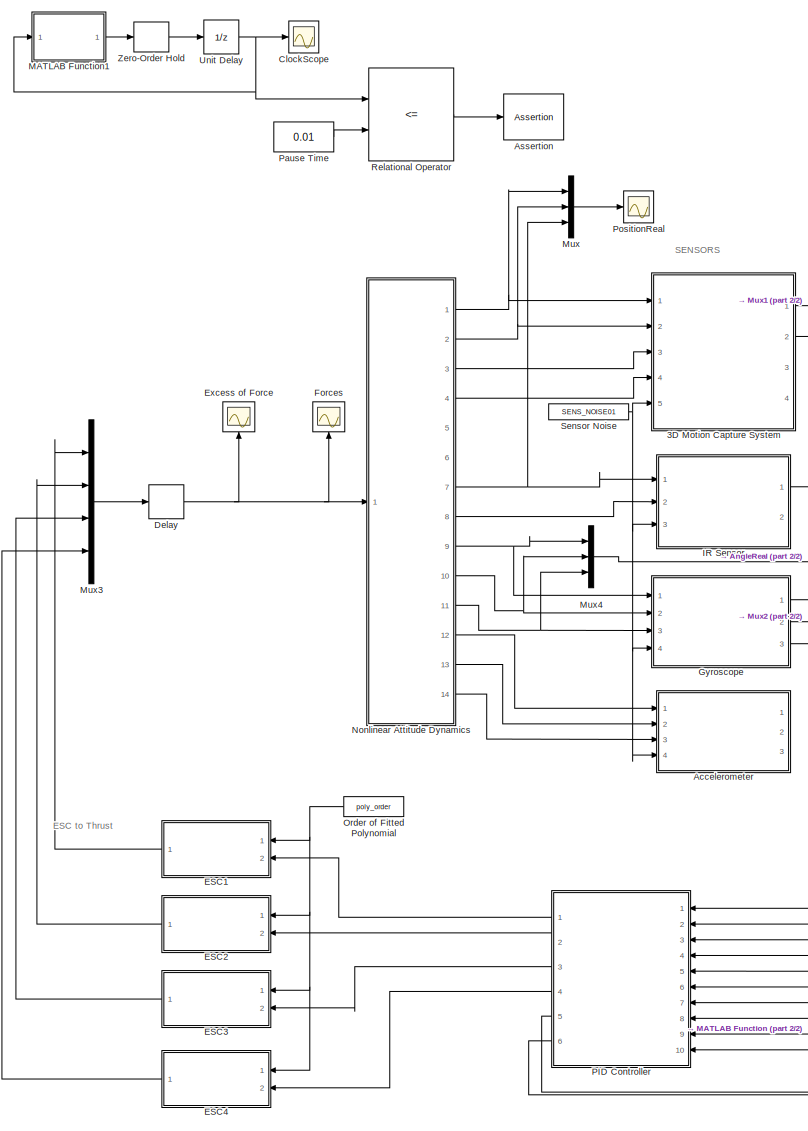
[diagram: root canvas - part 1/2, left side, full height]
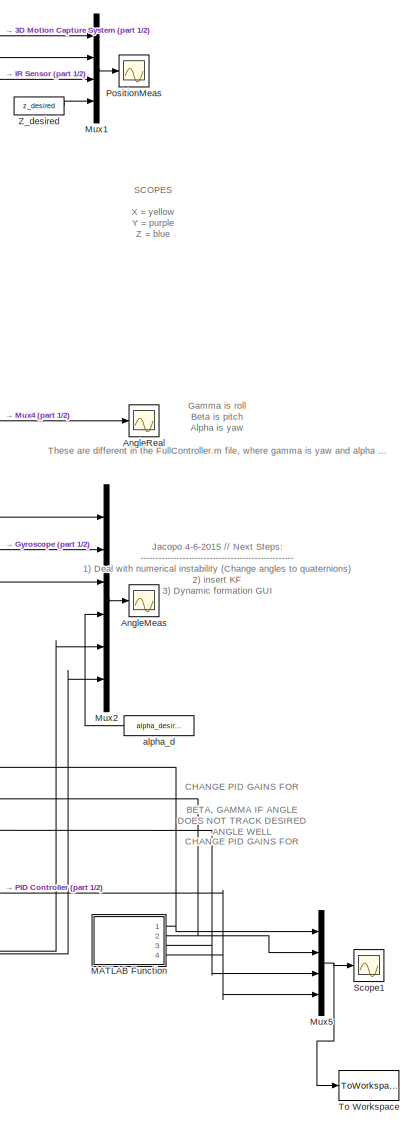
[diagram: root canvas - part 2/2, right side, full height]
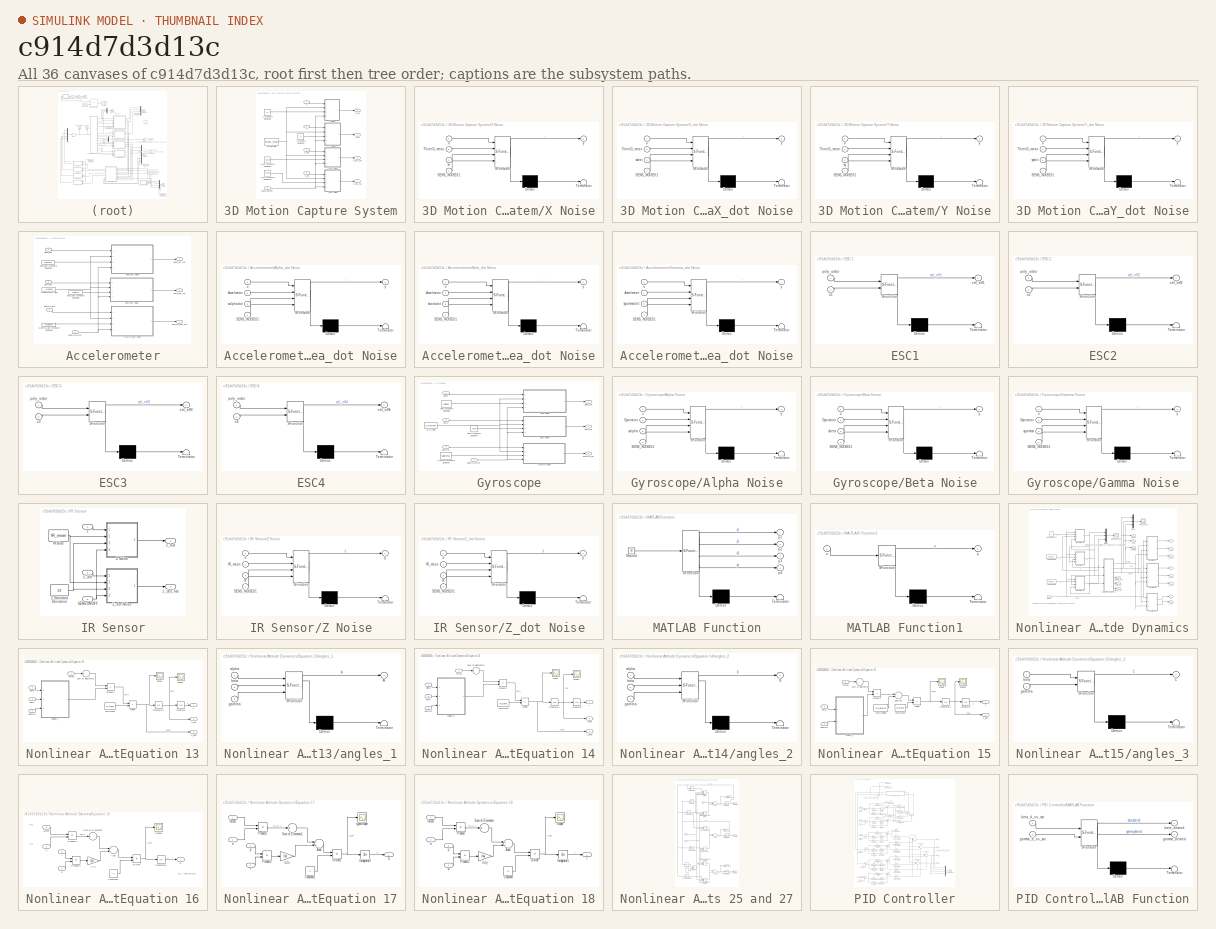
[diagram: thumbnail index - all 36 canvases of the model, root first then tree order]
MODEL slx_c914d7d3d13c
KIND model
BLOCK [SubSystem] 3D Motion Capture System
  Ports = [5, 4]
  RequestExecContextInheritance = off
BLOCK [Inport] 3D Motion Capture System/SENS-ON//OFF
  IconDisplay = Port number
  Port = 5
BLOCK [Constant] 3D Motion Capture System/ThreeD Bias
  Value = ThreeD_mean
BLOCK [SubSystem] 3D Motion Capture System/X Noise
  ErrorFcn = Stateflow.Translate.translate
  PermitHierarchicalResolution = ExplicitOnly
  Ports = [4, 1]
  RequestExecContextInheritance = off
  SFBlockType = MATLAB Function
  TreatAsAtomicUnit = on
BLOCK [Demux] 3D Motion Capture System/X Noise/ Demux 
  Outputs = 1
  Ports = [1, 1]
BLOCK [S-Function] 3D Motion Capture System/X Noise/ SFunction 
  EnableBusSupport = on
  FunctionName = sf_sfun
  PortCounts = [4 2]
  Ports = [4, 2]
  Tag = Stateflow S-Function DFA_PID_Controller_ESC 2
BLOCK [Terminator] 3D Motion Capture System/X Noise/ Terminator 
BLOCK [Inport] 3D Motion Capture System/X Noise/SENS_NOISE01
  IconDisplay = Port number
  Port = 4
BLOCK [Inport] 3D Motion Capture System/X Noise/ThreeD_mean
  IconDisplay = Port number
  Port = 2
BLOCK [Inport] 3D Motion Capture System/X Noise/sx
  IconDisplay = Port number
  Port = 3
BLOCK [Inport] 3D Motion Capture System/X Noise/u
  IconDisplay = Port number
BLOCK [Outport] 3D Motion Capture System/X Noise/y
  IconDisplay = Port number
BLOCK [Constant] 3D Motion Capture System/X Standard Deviation
  Value = sx
BLOCK [SubSystem] 3D Motion Capture System/X_dot Noise
  ErrorFcn = Stateflow.Translate.translate
  PermitHierarchicalResolution = ExplicitOnly
  Ports = [4, 1]
  RequestExecContextInheritance = off
  SFBlockType = MATLAB Function
  TreatAsAtomicUnit = on
BLOCK [Demux] 3D Motion Capture System/X_dot Noise/ Demux 
  Outputs = 1
  Ports = [1, 1]
BLOCK [S-Function] 3D Motion Capture System/X_dot Noise/ SFunction 
  EnableBusSupport = on
  FunctionName = sf_sfun
  PortCounts = [4 2]
  Ports = [4, 2]
  Tag = Stateflow S-Function DFA_PID_Controller_ESC 8
BLOCK [Terminator] 3D Motion Capture System/X_dot Noise/ Terminator 
BLOCK [Inport] 3D Motion Capture System/X_dot Noise/SENS_NOISE01
  IconDisplay = Port number
  Port = 4
BLOCK [Inport] 3D Motion Capture System/X_dot Noise/ThreeD_mean
  IconDisplay = Port number
  Port = 2
BLOCK [Inport] 3D Motion Capture System/X_dot Noise/sxdot
  IconDisplay = Port number
  Port = 3
BLOCK [Inport] 3D Motion Capture System/X_dot Noise/u
  IconDisplay = Port number
BLOCK [Outport] 3D Motion Capture System/X_dot Noise/y
  IconDisplay = Port number
BLOCK [Constant] 3D Motion Capture System/X_dot Standard Deviation
  Value = sxdot
BLOCK [SubSystem] 3D Motion Capture System/Y Noise
  ErrorFcn = Stateflow.Translate.translate
  PermitHierarchicalResolution = ExplicitOnly
  Ports = [4, 1]
  RequestExecContextInheritance = off
  SFBlockType = MATLAB Function
  TreatAsAtomicUnit = on
BLOCK [Demux] 3D Motion Capture System/Y Noise/ Demux 
  Outputs = 1
  Ports = [1, 1]
BLOCK [S-Function] 3D Motion Capture System/Y Noise/ SFunction 
  EnableBusSupport = on
  FunctionName = sf_sfun
  PortCounts = [4 2]
  Ports = [4, 2]
  Tag = Stateflow S-Function DFA_PID_Controller_ESC 9
BLOCK [Terminator] 3D Motion Capture System/Y Noise/ Terminator 
BLOCK [Inport] 3D Motion Capture System/Y Noise/SENS_NOISE01
  IconDisplay = Port number
  Port = 4
BLOCK [Inport] 3D Motion Capture System/Y Noise/ThreeD_mean
  IconDisplay = Port number
  Port = 2
BLOCK [Inport] 3D Motion Capture System/Y Noise/sy
  IconDisplay = Port number
  Port = 3
BLOCK [Inport] 3D Motion Capture System/Y Noise/u
  IconDisplay = Port number
BLOCK [Outport] 3D Motion Capture System/Y Noise/y
  IconDisplay = Port number
BLOCK [Constant] 3D Motion Capture System/Y Standard Deviation
  Value = sy
BLOCK [SubSystem] 3D Motion Capture System/Y_dot Noise
  ErrorFcn = Stateflow.Translate.translate
  PermitHierarchicalResolution = ExplicitOnly
  Ports = [4, 1]
  RequestExecContextInheritance = off
  SFBlockType = MATLAB Function
  TreatAsAtomicUnit = on
BLOCK [Demux] 3D Motion Capture System/Y_dot Noise/ Demux 
  Outputs = 1
  Ports = [1, 1]
BLOCK [S-Function] 3D Motion Capture System/Y_dot Noise/ SFunction 
  EnableBusSupport = on
  FunctionName = sf_sfun
  PortCounts = [4 2]
  Ports = [4, 2]
  Tag = Stateflow S-Function DFA_PID_Controller_ESC 7
BLOCK [Terminator] 3D Motion Capture System/Y_dot Noise/ Terminator 
BLOCK [Inport] 3D Motion Capture System/Y_dot Noise/SENS_NOISE01
  IconDisplay = Port number
  Port = 4
BLOCK [Inport] 3D Motion Capture System/Y_dot Noise/ThreeD_mean
  IconDisplay = Port number
  Port = 2
BLOCK [Inport] 3D Motion Capture System/Y_dot Noise/sydot
  IconDisplay = Port number
  Port = 3
BLOCK [Inport] 3D Motion Capture System/Y_dot Noise/u
  IconDisplay = Port number
BLOCK [Outport] 3D Motion Capture System/Y_dot Noise/y
  IconDisplay = Port number
BLOCK [Constant] 3D Motion Capture System/Y_dot Standard Deviation1
  Value = sydot
BLOCK [Inport] 3D Motion Capture System/x
  IconDisplay = Port number
BLOCK [Inport] 3D Motion Capture System/x_dot
  IconDisplay = Port number
  Port = 3
BLOCK [Outport] 3D Motion Capture System/x_dot_hat
  IconDisplay = Port number
  Port = 3
BLOCK [Outport] 3D Motion Capture System/x_hat
  IconDisplay = Port number
BLOCK [Inport] 3D Motion Capture System/y
  IconDisplay = Port number
  Port = 2
BLOCK [Inport] 3D Motion Capture System/y_dot
  IconDisplay = Port number
  Port = 4
BLOCK [Outport] 3D Motion Capture System/y_dot_hat
  IconDisplay = Port number
  Port = 4
BLOCK [Outport] 3D Motion Capture System/y_hat
  IconDisplay = Port number
  Port = 2
BLOCK [SubSystem] Accelerometer
  Ports = [4, 3]
  RequestExecContextInheritance = off
BLOCK [Constant] Accelerometer/Accelerometer Bias
  Value = Accelmean
BLOCK [SubSystem] Accelerometer/Alpha_dot Noise
  ErrorFcn = Stateflow.Translate.translate
  PermitHierarchicalResolution = ExplicitOnly
  Ports = [4, 1]
  RequestExecContextInheritance = off
  SFBlockType = MATLAB Function
  TreatAsAtomicUnit = on
BLOCK [Demux] Accelerometer/Alpha_dot Noise/ Demux 
  Outputs = 1
  Ports = [1, 1]
BLOCK [S-Function] Accelerometer/Alpha_dot Noise/ SFunction 
  EnableBusSupport = on
  FunctionName = sf_sfun
  PortCounts = [4 2]
  Ports = [4, 2]
  Tag = Stateflow S-Function DFA_PID_Controller_ESC 13
BLOCK [Terminator] Accelerometer/Alpha_dot Noise/ Terminator 
BLOCK [Inport] Accelerometer/Alpha_dot Noise/Accelmean
  IconDisplay = Port number
  Port = 2
BLOCK [Inport] Accelerometer/Alpha_dot Noise/SENS_NOISE01
  IconDisplay = Port number
  Port = 4
BLOCK [Inport] Accelerometer/Alpha_dot Noise/salphadot
  IconDisplay = Port number
  Port = 3
BLOCK [Inport] Accelerometer/Alpha_dot Noise/u
  IconDisplay = Port number
BLOCK [Outport] Accelerometer/Alpha_dot Noise/y
  IconDisplay = Port number
BLOCK [Constant] Accelerometer/Alpha_dot Standard Deviation
  Value = salphadot
BLOCK [SubSystem] Accelerometer/Beta_dot Noise
  ErrorFcn = Stateflow.Translate.translate
  PermitHierarchicalResolution = ExplicitOnly
  Ports = [4, 1]
  RequestExecContextInheritance = off
  SFBlockType = MATLAB Function
  TreatAsAtomicUnit = on
BLOCK [Demux] Accelerometer/Beta_dot Noise/ Demux 
  Outputs = 1
  Ports = [1, 1]
BLOCK [S-Function] Accelerometer/Beta_dot Noise/ SFunction 
  EnableBusSupport = on
  FunctionName = sf_sfun
  PortCounts = [4 2]
  Ports = [4, 2]
  Tag = Stateflow S-Function DFA_PID_Controller_ESC 11
BLOCK [Terminator] Accelerometer/Beta_dot Noise/ Terminator 
BLOCK [Inport] Accelerometer/Beta_dot Noise/Accelmean
  IconDisplay = Port number
  Port = 2
BLOCK [Inport] Accelerometer/Beta_dot Noise/SENS_NOISE01
  IconDisplay = Port number
  Port = 4
BLOCK [Inport] Accelerometer/Beta_dot Noise/sbetadot
  IconDisplay = Port number
  Port = 3
BLOCK [Inport] Accelerometer/Beta_dot Noise/u
  IconDisplay = Port number
BLOCK [Outport] Accelerometer/Beta_dot Noise/y
  IconDisplay = Port number
BLOCK [Constant] Accelerometer/Beta_dot Standard Deviation
  Value = sbetadot
BLOCK [SubSystem] Accelerometer/Gamma_dot Noise
  ErrorFcn = Stateflow.Translate.translate
  PermitHierarchicalResolution = ExplicitOnly
  Ports = [4, 1]
  RequestExecContextInheritance = off
  SFBlockType = MATLAB Function
  TreatAsAtomicUnit = on
BLOCK [Demux] Accelerometer/Gamma_dot Noise/ Demux 
  Outputs = 1
  Ports = [1, 1]
BLOCK [S-Function] Accelerometer/Gamma_dot Noise/ SFunction 
  EnableBusSupport = on
  FunctionName = sf_sfun
  PortCounts = [4 2]
  Ports = [4, 2]
  Tag = Stateflow S-Function DFA_PID_Controller_ESC 12
BLOCK [Terminator] Accelerometer/Gamma_dot Noise/ Terminator 
BLOCK [Inport] Accelerometer/Gamma_dot Noise/Accelmean
  IconDisplay = Port number
  Port = 2
BLOCK [Inport] Accelerometer/Gamma_dot Noise/SENS_NOISE01
  IconDisplay = Port number
  Port = 4
BLOCK [Inport] Accelerometer/Gamma_dot Noise/sgammadot
  IconDisplay = Port number
  Port = 3
BLOCK [Inport] Accelerometer/Gamma_dot Noise/u
  IconDisplay = Port number
BLOCK [Outport] Accelerometer/Gamma_dot Noise/y
  IconDisplay = Port number
BLOCK [Constant] Accelerometer/Gamma_dot Standard Deviation
  Value = sgammadot
BLOCK [Inport] Accelerometer/SENS-ON//OFF
  IconDisplay = Port number
  Port = 4
BLOCK [Inport] Accelerometer/alpha_dot
  IconDisplay = Port number
BLOCK [Outport] Accelerometer/alpha_dot_hat
  IconDisplay = Port number
BLOCK [Inport] Accelerometer/beta_dot
  IconDisplay = Port number
  Port = 2
BLOCK [Outport] Accelerometer/beta_dot_hat
  IconDisplay = Port number
  Port = 2
BLOCK [Inport] Accelerometer/gamma_dot
  IconDisplay = Port number
  Port = 3
BLOCK [Outport] Accelerometer/gamma_dot_hat
  IconDisplay = Port number
  Port = 3
BLOCK [Scope] AngleMeas
  DataFormat = StructureWithTime
  Floating = off
  LimitDataPoints = off
  NumInputPorts = 1
  Ports = [1]
  SampleTime = 0
  SaveName = PositionMeas1
  SaveToWorkspace = on
  ShowLegends = off
  YMax = 0.4
  YMin = -0.25
  ZoomMode = yonly
BLOCK [Scope] AngleReal
  DataFormat = StructureWithTime
  Floating = off
  LimitDataPoints = off
  NumInputPorts = 1
  Ports = [1]
  SampleTime = 0
  SaveName = PositionMeas2
  SaveToWorkspace = on
  ShowLegends = off
  YMax = 0.4
  YMin = -0.25
  ZoomMode = yonly
BLOCK [Assertion] Assertion
  AssertionFailFcn = set_param(bdroot, 'SimulationCommand', 'pause')
  StopWhenAssertionFail = off
BLOCK [Scope] ClockScope
  Floating = off
  LimitDataPoints = off
  NumInputPorts = 1
  Ports = [1]
  SaveName = NclockData
  SaveToWorkspace = on
  ShowLegends = off
BLOCK [Delay] Delay
  DelayLength = 1
  InitialCondition = f0
  InputPortMap = u0
  Ports = [1, 1]
BLOCK [SubSystem] ESC1
  ErrorFcn = Stateflow.Translate.translate
  PermitHierarchicalResolution = ExplicitOnly
  Ports = [2, 1]
  RequestExecContextInheritance = off
  SFBlockType = MATLAB Function
  TreatAsAtomicUnit = on
BLOCK [Demux] ESC1/ Demux 
  Outputs = 1
  Ports = [1, 1]
BLOCK [S-Function] ESC1/ SFunction 
  EnableBusSupport = on
  FunctionName = sf_sfun
  PortCounts = [2 2]
  Ports = [2, 2]
  Tag = Stateflow S-Function DFA_PID_Controller_ESC 16
BLOCK [Terminator] ESC1/ Terminator 
BLOCK [Outport] ESC1/ctrl_eff1
  IconDisplay = Port number
BLOCK [Inport] ESC1/poly_order
  IconDisplay = Port number
BLOCK [Inport] ESC1/u1
  IconDisplay = Port number
  Port = 2
BLOCK [SubSystem] ESC2
  ErrorFcn = Stateflow.Translate.translate
  PermitHierarchicalResolution = ExplicitOnly
  Ports = [2, 1]
  RequestExecContextInheritance = off
  SFBlockType = MATLAB Function
  TreatAsAtomicUnit = on
BLOCK [Demux] ESC2/ Demux 
  Outputs = 1
  Ports = [1, 1]
BLOCK [S-Function] ESC2/ SFunction 
  EnableBusSupport = on
  FunctionName = sf_sfun
  PortCounts = [2 2]
  Ports = [2, 2]
  Tag = Stateflow S-Function DFA_PID_Controller_ESC 18
BLOCK [Terminator] ESC2/ Terminator 
BLOCK [Outport] ESC2/ctrl_eff2
  IconDisplay = Port number
BLOCK [Inport] ESC2/poly_order
  IconDisplay = Port number
BLOCK [Inport] ESC2/u2
  IconDisplay = Port number
  Port = 2
BLOCK [SubSystem] ESC3
  ErrorFcn = Stateflow.Translate.translate
  PermitHierarchicalResolution = ExplicitOnly
  Ports = [2, 1]
  RequestExecContextInheritance = off
  SFBlockType = MATLAB Function
  TreatAsAtomicUnit = on
BLOCK [Demux] ESC3/ Demux 
  Outputs = 1
  Ports = [1, 1]
BLOCK [S-Function] ESC3/ SFunction 
  EnableBusSupport = on
  FunctionName = sf_sfun
  PortCounts = [2 2]
  Ports = [2, 2]
  Tag = Stateflow S-Function DFA_PID_Controller_ESC 19
BLOCK [Terminator] ESC3/ Terminator 
BLOCK [Outport] ESC3/ctrl_eff3
  IconDisplay = Port number
BLOCK [Inport] ESC3/poly_order
  IconDisplay = Port number
BLOCK [Inport] ESC3/u3
  IconDisplay = Port number
  Port = 2
BLOCK [SubSystem] ESC4
  ErrorFcn = Stateflow.Translate.translate
  PermitHierarchicalResolution = ExplicitOnly
  Ports = [2, 1]
  RequestExecContextInheritance = off
  SFBlockType = MATLAB Function
  TreatAsAtomicUnit = on
BLOCK [Demux] ESC4/ Demux 
  Outputs = 1
  Ports = [1, 1]
BLOCK [S-Function] ESC4/ SFunction 
  EnableBusSupport = on
  FunctionName = sf_sfun
  PortCounts = [2 2]
  Ports = [2, 2]
  Tag = Stateflow S-Function DFA_PID_Controller_ESC 20
BLOCK [Terminator] ESC4/ Terminator 
BLOCK [Outport] ESC4/ctrl_eff4
  IconDisplay = Port number
BLOCK [Inport] ESC4/poly_order
  IconDisplay = Port number
BLOCK [Inport] ESC4/u4
  IconDisplay = Port number
  Port = 2
BLOCK [Scope] Excess of Force
  Floating = off
  LimitDataPoints = off
  NumInputPorts = 1
  Ports = [1]
  SampleTime = 0
  SaveName = input_u
  SaveToWorkspace = on
  ShowLegends = off
  ZoomMode = yonly
BLOCK [Scope] Forces
  Floating = off
  LimitDataPoints = off
  NumInputPorts = 1
  Ports = [1]
  SampleTime = 0
  SaveName = input_u1
  SaveToWorkspace = on
  ShowLegends = off
BLOCK [SubSystem] Gyroscope
  Ports = [4, 3]
  RequestExecContextInheritance = off
BLOCK [SubSystem] Gyroscope/Alpha Noise
  ErrorFcn = Stateflow.Translate.translate
  PermitHierarchicalResolution = ExplicitOnly
  Ports = [4, 1]
  RequestExecContextInheritance = off
  SFBlockType = MATLAB Function
  TreatAsAtomicUnit = on
BLOCK [Demux] Gyroscope/Alpha Noise/ Demux 
  Outputs = 1
  Ports = [1, 1]
BLOCK [S-Function] Gyroscope/Alpha Noise/ SFunction 
  EnableBusSupport = on
  FunctionName = sf_sfun
  PortCounts = [4 2]
  Ports = [4, 2]
  Tag = Stateflow S-Function DFA_PID_Controller_ESC 15
BLOCK [Terminator] Gyroscope/Alpha Noise/ Terminator 
BLOCK [Inport] Gyroscope/Alpha Noise/Gyromean
  IconDisplay = Port number
  Port = 2
BLOCK [Inport] Gyroscope/Alpha Noise/SENS_NOISE01
  IconDisplay = Port number
  Port = 4
BLOCK [Inport] Gyroscope/Alpha Noise/salpha
  IconDisplay = Port number
  Port = 3
BLOCK [Inport] Gyroscope/Alpha Noise/u
  IconDisplay = Port number
BLOCK [Outport] Gyroscope/Alpha Noise/y
  IconDisplay = Port number
BLOCK [Constant] Gyroscope/Alpha Standard Deviation
  Value = salpha
BLOCK [SubSystem] Gyroscope/Beta Noise
  ErrorFcn = Stateflow.Translate.translate
  PermitHierarchicalResolution = ExplicitOnly
  Ports = [4, 1]
  RequestExecContextInheritance = off
  SFBlockType = MATLAB Function
  TreatAsAtomicUnit = on
BLOCK [Demux] Gyroscope/Beta Noise/ Demux 
  Outputs = 1
  Ports = [1, 1]
BLOCK [S-Function] Gyroscope/Beta Noise/ SFunction 
  EnableBusSupport = on
  FunctionName = sf_sfun
  PortCounts = [4 2]
  Ports = [4, 2]
  Tag = Stateflow S-Function DFA_PID_Controller_ESC 14
BLOCK [Terminator] Gyroscope/Beta Noise/ Terminator 
BLOCK [Inport] Gyroscope/Beta Noise/Gyromean
  IconDisplay = Port number
  Port = 2
BLOCK [Inport] Gyroscope/Beta Noise/SENS_NOISE01
  IconDisplay = Port number
  Port = 4
BLOCK [Inport] Gyroscope/Beta Noise/sbeta
  IconDisplay = Port number
  Port = 3
BLOCK [Inport] Gyroscope/Beta Noise/u
  IconDisplay = Port number
BLOCK [Outport] Gyroscope/Beta Noise/y
  IconDisplay = Port number
BLOCK [Constant] Gyroscope/Beta Standard Deviation
  Value = sbeta
BLOCK [SubSystem] Gyroscope/Gamma Noise
  ErrorFcn = Stateflow.Translate.translate
  PermitHierarchicalResolution = ExplicitOnly
  Ports = [4, 1]
  RequestExecContextInheritance = off
  SFBlockType = MATLAB Function
  TreatAsAtomicUnit = on
BLOCK [Demux] Gyroscope/Gamma Noise/ Demux 
  Outputs = 1
  Ports = [1, 1]
BLOCK [S-Function] Gyroscope/Gamma Noise/ SFunction 
  EnableBusSupport = on
  FunctionName = sf_sfun
  PortCounts = [4 2]
  Ports = [4, 2]
  Tag = Stateflow S-Function DFA_PID_Controller_ESC 10
BLOCK [Terminator] Gyroscope/Gamma Noise/ Terminator 
BLOCK [Inport] Gyroscope/Gamma Noise/Gyromean
  IconDisplay = Port number
  Port = 2
BLOCK [Inport] Gyroscope/Gamma Noise/SENS_NOISE01
  IconDisplay = Port number
  Port = 4
BLOCK [Inport] Gyroscope/Gamma Noise/sgamma
  IconDisplay = Port number
  Port = 3
BLOCK [Inport] Gyroscope/Gamma Noise/u
  IconDisplay = Port number
BLOCK [Outport] Gyroscope/Gamma Noise/y
  IconDisplay = Port number
BLOCK [Constant] Gyroscope/Gamma Standard Deviation
  Value = sgamma
BLOCK [Constant] Gyroscope/Gyro Bias
  Value = Gyromean
BLOCK [Inport] Gyroscope/SENS-ON//OFF
  IconDisplay = Port number
  Port = 4
BLOCK [Inport] Gyroscope/alpha
  IconDisplay = Port number
BLOCK [Outport] Gyroscope/alpha_hat
  IconDisplay = Port number
BLOCK [Inport] Gyroscope/beta
  IconDisplay = Port number
  Port = 2
BLOCK [Outport] Gyroscope/beta_hat
  IconDisplay = Port number
  Port = 2
BLOCK [Inport] Gyroscope/gamma
  IconDisplay = Port number
  Port = 3
BLOCK [Outport] Gyroscope/gamma_hat
  IconDisplay = Port number
  Port = 3
BLOCK [SubSystem] IR Sensor
  Ports = [3, 2]
  RequestExecContextInheritance = off
BLOCK [Constant] IR Sensor/IR Bias
  Value = IR_mean
BLOCK [Inport] IR Sensor/SENS-ON//OFF
  IconDisplay = Port number
  Port = 3
BLOCK [SubSystem] IR Sensor/Z Noise
  ErrorFcn = Stateflow.Translate.translate
  PermitHierarchicalResolution = ExplicitOnly
  Ports = [4, 1]
  RequestExecContextInheritance = off
  SFBlockType = MATLAB Function
  TreatAsAtomicUnit = on
BLOCK [Demux] IR Sensor/Z Noise/ Demux 
  Outputs = 1
  Ports = [1, 1]
BLOCK [S-Function] IR Sensor/Z Noise/ SFunction 
  EnableBusSupport = on
  FunctionName = sf_sfun
  PortCounts = [4 2]
  Ports = [4, 2]
  Tag = Stateflow S-Function DFA_PID_Controller_ESC 1
BLOCK [Terminator] IR Sensor/Z Noise/ Terminator 
BLOCK [Inport] IR Sensor/Z Noise/IR_mean
  IconDisplay = Port number
  Port = 2
BLOCK [Inport] IR Sensor/Z Noise/SENS_NOISE01
  IconDisplay = Port number
  Port = 4
BLOCK [Inport] IR Sensor/Z Noise/sz
  IconDisplay = Port number
  Port = 3
BLOCK [Inport] IR Sensor/Z Noise/u
  IconDisplay = Port number
BLOCK [Outport] IR Sensor/Z Noise/y
  IconDisplay = Port number
BLOCK [Constant] IR Sensor/Z Standard Deviation
  Value = sz
BLOCK [SubSystem] IR Sensor/Z_dot Noise
  ErrorFcn = Stateflow.Translate.translate
  PermitHierarchicalResolution = ExplicitOnly
  Ports = [4, 1]
  RequestExecContextInheritance = off
  SFBlockType = MATLAB Function
  TreatAsAtomicUnit = on
BLOCK [Demux] IR Sensor/Z_dot Noise/ Demux 
  Outputs = 1
  Ports = [1, 1]
BLOCK [S-Function] IR Sensor/Z_dot Noise/ SFunction 
  EnableBusSupport = on
  FunctionName = sf_sfun
  PortCounts = [4 2]
  Ports = [4, 2]
  Tag = Stateflow S-Function DFA_PID_Controller_ESC 3
BLOCK [Terminator] IR Sensor/Z_dot Noise/ Terminator 
BLOCK [Inport] IR Sensor/Z_dot Noise/IR_mean
  IconDisplay = Port number
  Port = 2
BLOCK [Inport] IR Sensor/Z_dot Noise/SENS_NOISE01
  IconDisplay = Port number
  Port = 4
BLOCK [Inport] IR Sensor/Z_dot Noise/sz
  IconDisplay = Port number
  Port = 3
BLOCK [Inport] IR Sensor/Z_dot Noise/u
  IconDisplay = Port number
BLOCK [Outport] IR Sensor/Z_dot Noise/y
  IconDisplay = Port number
BLOCK [Inport] IR Sensor/z
  IconDisplay = Port number
BLOCK [Inport] IR Sensor/z_dot
  IconDisplay = Port number
  Port = 2
BLOCK [Outport] IR Sensor/z_dot_hat
  IconDisplay = Port number
  Port = 2
BLOCK [Outport] IR Sensor/z_hat
  IconDisplay = Port number
BLOCK [SubSystem] MATLAB Function
  ErrorFcn = Stateflow.Translate.translate
  PermitHierarchicalResolution = ExplicitOnly
  Ports = [0, 4]
  RequestExecContextInheritance = off
  SFBlockType = MATLAB Function
  TreatAsAtomicUnit = on
BLOCK [Demux] MATLAB Function/ Demux 
  Outputs = 1
  Ports = [1, 1]
BLOCK [Ground] MATLAB Function/ Ground 
BLOCK [S-Function] MATLAB Function/ SFunction 
  EnableBusSupport = on
  FunctionName = sf_sfun
  PortCounts = [1 5]
  Ports = [1, 5]
  Tag = Stateflow S-Function DFA_PID_Controller_ESC 17
BLOCK [Terminator] MATLAB Function/ Terminator 
BLOCK [Outport] MATLAB Function/y1
  IconDisplay = Port number
BLOCK [Outport] MATLAB Function/y2
  IconDisplay = Port number
  Port = 2
BLOCK [Outport] MATLAB Function/y3
  IconDisplay = Port number
  Port = 3
BLOCK [Outport] MATLAB Function/y4
  IconDisplay = Port number
  Port = 4
BLOCK [SubSystem] MATLAB Function1
  ErrorFcn = Stateflow.Translate.translate
  PermitHierarchicalResolution = ExplicitOnly
  Ports = [1, 1]
  RequestExecContextInheritance = off
  SFBlockType = MATLAB Function
  TreatAsAtomicUnit = on
BLOCK [Demux] MATLAB Function1/ Demux 
  Outputs = 1
  Ports = [1, 1]
BLOCK [S-Function] MATLAB Function1/ SFunction 
  EnableBusSupport = on
  FunctionName = sf_sfun
  PortCounts = [1 2]
  Ports = [1, 2]
  Tag = Stateflow S-Function DFA_PID_Controller_ESC 21
BLOCK [Terminator] MATLAB Function1/ Terminator 
BLOCK [Inport] MATLAB Function1/u
  IconDisplay = Port number
BLOCK [Outport] MATLAB Function1/y
  IconDisplay = Port number
BLOCK [Mux] Mux
  DisplayOption = bar
  Inputs = 3
  Ports = [3, 1]
BLOCK [Mux] Mux1
  DisplayOption = bar
  Ports = [4, 1]
BLOCK [Mux] Mux2
  DisplayOption = bar
  Inputs = 6
  Ports = [6, 1]
BLOCK [Mux] Mux3
  DisplayOption = bar
  Ports = [4, 1]
BLOCK [Mux] Mux4
  DisplayOption = bar
  Inputs = 3
  Ports = [3, 1]
BLOCK [Mux] Mux5
  DisplayOption = bar
  Ports = [4, 1]
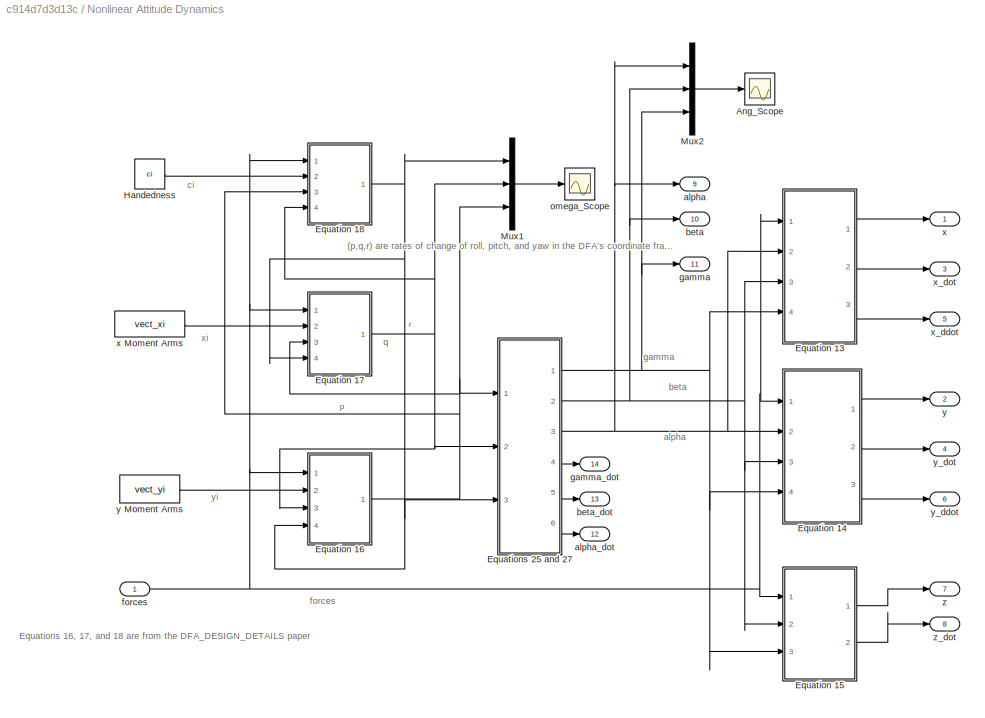
BLOCK [SubSystem] Nonlinear Attitude Dynamics
  Ports = [1, 14]
  RequestExecContextInheritance = off
BLOCK [Scope] Nonlinear Attitude Dynamics/Ang_Scope
  DataFormat = StructureWithTime
  Floating = off
  LimitDataPoints = off
  NumInputPorts = 1
  Ports = [1]
  SampleTime = 0
  SaveName = Ang_Scope1
  SaveToWorkspace = on
  ShowLegends = off
BLOCK [SubSystem] Nonlinear Attitude Dynamics/Equation 13
  Ports = [4, 3]
  RequestExecContextInheritance = off
BLOCK [Product] Nonlinear Attitude Dynamics/Equation 13/Divide
  InputSameDT = off
  Inputs = */
  OutDataTypeStr = Inherit: Inherit via internal rule
  Ports = [2, 1]
  RndMeth = Floor
  SaturateOnIntegerOverflow = off
BLOCK [Integrator] Nonlinear Attitude Dynamics/Equation 13/Integrator
  InitialCondition = x0
  Ports = [1, 1]
BLOCK [Integrator] Nonlinear Attitude Dynamics/Equation 13/Integrator1
  InitialCondition = x0dot
  Ports = [1, 1]
BLOCK [Product] Nonlinear Attitude Dynamics/Equation 13/Product1
  InputSameDT = off
  OutDataTypeStr = Inherit: Inherit via internal rule
  Ports = [2, 1]
  SaturateOnIntegerOverflow = off
BLOCK [Scope] Nonlinear Attitude Dynamics/Equation 13/Scope
  DataFormat = StructureWithTime
  Floating = off
  LimitDataPoints = off
  NumInputPorts = 1
  Ports = [1]
  SampleTime = 0
  SaveName = xddot
  SaveToWorkspace = on
  ShowLegends = off
BLOCK [Scope] Nonlinear Attitude Dynamics/Equation 13/Scope1
  DataFormat = StructureWithTime
  Floating = off
  LimitDataPoints = off
  NumInputPorts = 1
  Ports = [1]
  SampleTime = 0
  SaveName = xdot
  SaveToWorkspace = on
  ShowLegends = off
BLOCK [Sum] Nonlinear Attitude Dynamics/Equation 13/Sum of Elements1
  InputSameDT = off
  Inputs = +
  OutDataTypeStr = Inherit: Inherit via internal rule
  Ports = [1, 1]
  SaturateOnIntegerOverflow = off
BLOCK [Constant] Nonlinear Attitude Dynamics/Equation 13/Total Mass
  Value = m_total
BLOCK [Inport] Nonlinear Attitude Dynamics/Equation 13/alpha
  IconDisplay = Port number
  Port = 2
BLOCK [SubSystem] Nonlinear Attitude Dynamics/Equation 13/angles_1
  ErrorFcn = Stateflow.Translate.translate
  PermitHierarchicalResolution = ExplicitOnly
  Ports = [3, 1]
  RequestExecContextInheritance = off
  SFBlockType = MATLAB Function
  TreatAsAtomicUnit = on
BLOCK [Demux] Nonlinear Attitude Dynamics/Equation 13/angles_1/ Demux 
  Outputs = 1
  Ports = [1, 1]
BLOCK [S-Function] Nonlinear Attitude Dynamics/Equation 13/angles_1/ SFunction 
  EnableBusSupport = on
  FunctionName = sf_sfun
  PortCounts = [3 2]
  Ports = [3, 2]
  Tag = Stateflow S-Function DFA_PID_Controller_ESC 4
BLOCK [Terminator] Nonlinear Attitude Dynamics/Equation 13/angles_1/ Terminator 
BLOCK [Outport] Nonlinear Attitude Dynamics/Equation 13/angles_1/A
  IconDisplay = Port number
BLOCK [Inport] Nonlinear Attitude Dynamics/Equation 13/angles_1/alpha
  IconDisplay = Port number
BLOCK [Inport] Nonlinear Attitude Dynamics/Equation 13/angles_1/beta
  IconDisplay = Port number
  Port = 2
BLOCK [Inport] Nonlinear Attitude Dynamics/Equation 13/angles_1/gamma
  IconDisplay = Port number
  Port = 3
BLOCK [Inport] Nonlinear Attitude Dynamics/Equation 13/beta
  IconDisplay = Port number
  Port = 3
BLOCK [Inport] Nonlinear Attitude Dynamics/Equation 13/forces
  IconDisplay = Port number
BLOCK [Inport] Nonlinear Attitude Dynamics/Equation 13/gamma
  IconDisplay = Port number
  Port = 4
BLOCK [Outport] Nonlinear Attitude Dynamics/Equation 13/x
  IconDisplay = Port number
BLOCK [Outport] Nonlinear Attitude Dynamics/Equation 13/x_ddot
  IconDisplay = Port number
  Port = 3
BLOCK [Outport] Nonlinear Attitude Dynamics/Equation 13/x_dot
  IconDisplay = Port number
  Port = 2
BLOCK [SubSystem] Nonlinear Attitude Dynamics/Equation 14
  Ports = [4, 3]
  RequestExecContextInheritance = off
BLOCK [Product] Nonlinear Attitude Dynamics/Equation 14/Divide
  InputSameDT = off
  Inputs = */
  OutDataTypeStr = Inherit: Inherit via internal rule
  Ports = [2, 1]
  RndMeth = Floor
  SaturateOnIntegerOverflow = off
BLOCK [Integrator] Nonlinear Attitude Dynamics/Equation 14/Integrator
  InitialCondition = y0
  Ports = [1, 1]
BLOCK [Integrator] Nonlinear Attitude Dynamics/Equation 14/Integrator1
  InitialCondition = y0dot
  Ports = [1, 1]
BLOCK [Product] Nonlinear Attitude Dynamics/Equation 14/Product1
  InputSameDT = off
  OutDataTypeStr = Inherit: Inherit via internal rule
  Ports = [2, 1]
  SaturateOnIntegerOverflow = off
BLOCK [Scope] Nonlinear Attitude Dynamics/Equation 14/Scope
  DataFormat = StructureWithTime
  Floating = off
  LimitDataPoints = off
  NumInputPorts = 1
  Ports = [1]
  SampleTime = 0
  SaveName = yddot
  SaveToWorkspace = on
  ShowLegends = off
BLOCK [Scope] Nonlinear Attitude Dynamics/Equation 14/Scope1
  DataFormat = StructureWithTime
  Floating = off
  LimitDataPoints = off
  NumInputPorts = 1
  Ports = [1]
  SampleTime = 0
  SaveName = ydot
  SaveToWorkspace = on
  ShowLegends = off
BLOCK [Sum] Nonlinear Attitude Dynamics/Equation 14/Sum of Elements1
  InputSameDT = off
  Inputs = +
  OutDataTypeStr = Inherit: Inherit via internal rule
  Ports = [1, 1]
  SaturateOnIntegerOverflow = off
BLOCK [Constant] Nonlinear Attitude Dynamics/Equation 14/Total Mass
  Value = m_total
BLOCK [Inport] Nonlinear Attitude Dynamics/Equation 14/alpha
  IconDisplay = Port number
  Port = 2
BLOCK [SubSystem] Nonlinear Attitude Dynamics/Equation 14/angles_2
  ErrorFcn = Stateflow.Translate.translate
  PermitHierarchicalResolution = ExplicitOnly
  Ports = [3, 1]
  RequestExecContextInheritance = off
  SFBlockType = MATLAB Function
  TreatAsAtomicUnit = on
BLOCK [Demux] Nonlinear Attitude Dynamics/Equation 14/angles_2/ Demux 
  Outputs = 1
  Ports = [1, 1]
BLOCK [S-Function] Nonlinear Attitude Dynamics/Equation 14/angles_2/ SFunction 
  EnableBusSupport = on
  FunctionName = sf_sfun
  PortCounts = [3 2]
  Ports = [3, 2]
  Tag = Stateflow S-Function DFA_PID_Controller_ESC 5
BLOCK [Terminator] Nonlinear Attitude Dynamics/Equation 14/angles_2/ Terminator 
BLOCK [Outport] Nonlinear Attitude Dynamics/Equation 14/angles_2/B
  IconDisplay = Port number
BLOCK [Inport] Nonlinear Attitude Dynamics/Equation 14/angles_2/alpha
  IconDisplay = Port number
BLOCK [Inport] Nonlinear Attitude Dynamics/Equation 14/angles_2/beta
  IconDisplay = Port number
  Port = 2
BLOCK [Inport] Nonlinear Attitude Dynamics/Equation 14/angles_2/gamma
  IconDisplay = Port number
  Port = 3
BLOCK [Inport] Nonlinear Attitude Dynamics/Equation 14/beta
  IconDisplay = Port number
  Port = 3
BLOCK [Inport] Nonlinear Attitude Dynamics/Equation 14/forces
  IconDisplay = Port number
BLOCK [Inport] Nonlinear Attitude Dynamics/Equation 14/gamma
  IconDisplay = Port number
  Port = 4
BLOCK [Outport] Nonlinear Attitude Dynamics/Equation 14/y
  IconDisplay = Port number
BLOCK [Outport] Nonlinear Attitude Dynamics/Equation 14/y_ddot
  IconDisplay = Port number
  Port = 3
BLOCK [Outport] Nonlinear Attitude Dynamics/Equation 14/y_dot
  IconDisplay = Port number
  Port = 2
BLOCK [SubSystem] Nonlinear Attitude Dynamics/Equation 15
  Ports = [3, 2]
  RequestExecContextInheritance = off
BLOCK [Product] Nonlinear Attitude Dynamics/Equation 15/Divide
  InputSameDT = off
  Inputs = */
  OutDataTypeStr = Inherit: Inherit via internal rule
  Ports = [2, 1]
  RndMeth = Floor
  SaturateOnIntegerOverflow = off
BLOCK [Integrator] Nonlinear Attitude Dynamics/Equation 15/Integrator
  InitialCondition = z0
  Ports = [1, 1]
BLOCK [Integrator] Nonlinear Attitude Dynamics/Equation 15/Integrator1
  InitialCondition = z0dot
  Ports = [1, 1]
BLOCK [Product] Nonlinear Attitude Dynamics/Equation 15/Product1
  InputSameDT = off
  OutDataTypeStr = Inherit: Inherit via internal rule
  Ports = [2, 1]
  SaturateOnIntegerOverflow = off
BLOCK [Scope] Nonlinear Attitude Dynamics/Equation 15/Scope
  DataFormat = StructureWithTime
  Floating = off
  LimitDataPoints = off
  NumInputPorts = 1
  Ports = [1]
  SampleTime = 0
  SaveName = zddot
  SaveToWorkspace = on
  ShowLegends = off
BLOCK [Scope] Nonlinear Attitude Dynamics/Equation 15/Scope1
  DataFormat = StructureWithTime
  Floating = off
  LimitDataPoints = off
  NumInputPorts = 1
  Ports = [1]
  SampleTime = 0
  SaveName = zdot
  SaveToWorkspace = on
  ShowLegends = off
BLOCK [Sum] Nonlinear Attitude Dynamics/Equation 15/Subtract
  InputSameDT = off
  Inputs = +-
  OutDataTypeStr = Inherit: Inherit via internal rule
  Ports = [2, 1]
  SaturateOnIntegerOverflow = off
BLOCK [Sum] Nonlinear Attitude Dynamics/Equation 15/Sum of Elements
  InputSameDT = off
  Inputs = +
  OutDataTypeStr = Inherit: Inherit via internal rule
  Ports = [1, 1]
  SaturateOnIntegerOverflow = off
BLOCK [Constant] Nonlinear Attitude Dynamics/Equation 15/Total Mass
  Value = m_total
BLOCK [Constant] Nonlinear Attitude Dynamics/Equation 15/Total Weight
  Value = m_total*g
BLOCK [SubSystem] Nonlinear Attitude Dynamics/Equation 15/angles_3
  ErrorFcn = Stateflow.Translate.translate
  PermitHierarchicalResolution = ExplicitOnly
  Ports = [2, 1]
  RequestExecContextInheritance = off
  SFBlockType = MATLAB Function
  TreatAsAtomicUnit = on
BLOCK [Demux] Nonlinear Attitude Dynamics/Equation 15/angles_3/ Demux 
  Outputs = 1
  Ports = [1, 1]
BLOCK [S-Function] Nonlinear Attitude Dynamics/Equation 15/angles_3/ SFunction 
  EnableBusSupport = on
  FunctionName = sf_sfun
  PortCounts = [2 2]
  Ports = [2, 2]
  Tag = Stateflow S-Function DFA_PID_Controller_ESC 6
BLOCK [Terminator] Nonlinear Attitude Dynamics/Equation 15/angles_3/ Terminator 
BLOCK [Outport] Nonlinear Attitude Dynamics/Equation 15/angles_3/C
  IconDisplay = Port number
BLOCK [Inport] Nonlinear Attitude Dynamics/Equation 15/angles_3/beta
  IconDisplay = Port number
BLOCK [Inport] Nonlinear Attitude Dynamics/Equation 15/angles_3/gamma
  IconDisplay = Port number
  Port = 2
BLOCK [Inport] Nonlinear Attitude Dynamics/Equation 15/beta
  IconDisplay = Port number
  Port = 2
BLOCK [Inport] Nonlinear Attitude Dynamics/Equation 15/forces
  IconDisplay = Port number
BLOCK [Inport] Nonlinear Attitude Dynamics/Equation 15/gamma
  IconDisplay = Port number
  Port = 3
BLOCK [Outport] Nonlinear Attitude Dynamics/Equation 15/z
  IconDisplay = Port number
BLOCK [Outport] Nonlinear Attitude Dynamics/Equation 15/z_dot
  IconDisplay = Port number
  Port = 2
BLOCK [SubSystem] Nonlinear Attitude Dynamics/Equation 16
  Ports = [4, 1]
  RequestExecContextInheritance = off
BLOCK [Sum] Nonlinear Attitude Dynamics/Equation 16/Add
  InputSameDT = off
  OutDataTypeStr = Inherit: Inherit via internal rule
  Ports = [2, 1]
  SaturateOnIntegerOverflow = off
BLOCK [Constant] Nonlinear Attitude Dynamics/Equation 16/Constant2
  Value = Ix
BLOCK [Product] Nonlinear Attitude Dynamics/Equation 16/Divide
  InputSameDT = off
  Inputs = */
  OutDataTypeStr = Inherit: Inherit via internal rule
  Ports = [2, 1]
  RndMeth = Floor
  SaturateOnIntegerOverflow = off
BLOCK [Integrator] Nonlinear Attitude Dynamics/Equation 16/Integrator1
  InitialCondition = p0
  Ports = [1, 1]
BLOCK [Gain] Nonlinear Attitude Dynamics/Equation 16/Iy-Iz
  Gain = Iyz
  OutDataTypeStr = Inherit: Inherit via internal rule
  ParamDataTypeStr = Inherit: Inherit via internal rule
  SaturateOnIntegerOverflow = off
BLOCK [Product] Nonlinear Attitude Dynamics/Equation 16/Product3
  InputSameDT = off
  OutDataTypeStr = Inherit: Inherit via internal rule
  Ports = [2, 1]
  SaturateOnIntegerOverflow = off
BLOCK [Product] Nonlinear Attitude Dynamics/Equation 16/Product4
  InputSameDT = off
  OutDataTypeStr = Inherit: Inherit via internal rule
  Ports = [2, 1]
  SaturateOnIntegerOverflow = off
BLOCK [Scope] Nonlinear Attitude Dynamics/Equation 16/Scope1
  DataFormat = StructureWithTime
  Floating = off
  LimitDataPoints = off
  NumInputPorts = 1
  Ports = [1]
  SampleTime = 0
  SaveName = alphaddot3
  SaveToWorkspace = on
  ShowLegends = off
BLOCK [Sum] Nonlinear Attitude Dynamics/Equation 16/Sum of Elements
  InputSameDT = off
  Inputs = +
  OutDataTypeStr = Inherit: Inherit via internal rule
  Ports = [1, 1]
  SaturateOnIntegerOverflow = off
BLOCK [Inport] Nonlinear Attitude Dynamics/Equation 16/forces
  IconDisplay = Port number
BLOCK [Outport] Nonlinear Attitude Dynamics/Equation 16/p
  IconDisplay = Port number
BLOCK [Inport] Nonlinear Attitude Dynamics/Equation 16/q
  IconDisplay = Port number
  Port = 3
BLOCK [Inport] Nonlinear Attitude Dynamics/Equation 16/r
  IconDisplay = Port number
  Port = 4
BLOCK [Inport] Nonlinear Attitude Dynamics/Equation 16/yi
  IconDisplay = Port number
  Port = 2
BLOCK [SubSystem] Nonlinear Attitude Dynamics/Equation 17
  Ports = [4, 1]
  RequestExecContextInheritance = off
BLOCK [Sum] Nonlinear Attitude Dynamics/Equation 17/Add
  InputSameDT = off
  Inputs = -+
  OutDataTypeStr = Inherit: Inherit via internal rule
  Ports = [2, 1]
  SaturateOnIntegerOverflow = off
BLOCK [Constant] Nonlinear Attitude Dynamics/Equation 17/Constant1
  Value = Iy
BLOCK [Product] Nonlinear Attitude Dynamics/Equation 17/Divide1
  InputSameDT = off
  Inputs = */
  OutDataTypeStr = Inherit: Inherit via internal rule
  Ports = [2, 1]
  RndMeth = Floor
  SaturateOnIntegerOverflow = off
BLOCK [Integrator] Nonlinear Attitude Dynamics/Equation 17/Integrator2
  InitialCondition = q0
  Ports = [1, 1]
BLOCK [Gain] Nonlinear Attitude Dynamics/Equation 17/Iz-Ix
  Gain = Izx
  OutDataTypeStr = Inherit: Inherit via internal rule
  ParamDataTypeStr = Inherit: Inherit via internal rule
  SaturateOnIntegerOverflow = off
BLOCK [Product] Nonlinear Attitude Dynamics/Equation 17/Product1
  InputSameDT = off
  OutDataTypeStr = Inherit: Inherit via internal rule
  Ports = [2, 1]
  SaturateOnIntegerOverflow = off
BLOCK [Product] Nonlinear Attitude Dynamics/Equation 17/Product2
  InputSameDT = off
  OutDataTypeStr = Inherit: Inherit via internal rule
  Ports = [2, 1]
  SaturateOnIntegerOverflow = off
BLOCK [Sum] Nonlinear Attitude Dynamics/Equation 17/Sum of Elements1
  InputSameDT = off
  Inputs = +
  OutDataTypeStr = Inherit: Inherit via internal rule
  Ports = [1, 1]
  SaturateOnIntegerOverflow = off
BLOCK [Inport] Nonlinear Attitude Dynamics/Equation 17/forces
  IconDisplay = Port number
BLOCK [Inport] Nonlinear Attitude Dynamics/Equation 17/p
  IconDisplay = Port number
  Port = 3
BLOCK [Outport] Nonlinear Attitude Dynamics/Equation 17/q
  IconDisplay = Port number
BLOCK [Scope] Nonlinear Attitude Dynamics/Equation 17/q_dotScope
  DataFormat = StructureWithTime
  Floating = off
  LimitDataPoints = off
  NumInputPorts = 1
  Ports = [1]
  SampleTime = 0
  SaveName = alphaddot1
  SaveToWorkspace = on
  ShowLegends = off
BLOCK [Inport] Nonlinear Attitude Dynamics/Equation 17/r
  IconDisplay = Port number
  Port = 4
BLOCK [Inport] Nonlinear Attitude Dynamics/Equation 17/xi
  IconDisplay = Port number
  Port = 2
BLOCK [SubSystem] Nonlinear Attitude Dynamics/Equation 18
  Ports = [4, 1]
  RequestExecContextInheritance = off
BLOCK [Sum] Nonlinear Attitude Dynamics/Equation 18/Add
  InputSameDT = off
  OutDataTypeStr = Inherit: Inherit via internal rule
  Ports = [2, 1]
  SaturateOnIntegerOverflow = off
BLOCK [Constant] Nonlinear Attitude Dynamics/Equation 18/Constant
  Value = Iz
BLOCK [Product] Nonlinear Attitude Dynamics/Equation 18/Divide
  InputSameDT = off
  Inputs = */
  OutDataTypeStr = Inherit: Inherit via internal rule
  Ports = [2, 1]
  RndMeth = Floor
  SaturateOnIntegerOverflow = off
BLOCK [Integrator] Nonlinear Attitude Dynamics/Equation 18/Integrator1
  InitialCondition = r0
  Ports = [1, 1]
BLOCK [Gain] Nonlinear Attitude Dynamics/Equation 18/Ix-Iy
  Gain = Ixy
  OutDataTypeStr = Inherit: Inherit via internal rule
  ParamDataTypeStr = Inherit: Inherit via internal rule
  SaturateOnIntegerOverflow = off
BLOCK [Product] Nonlinear Attitude Dynamics/Equation 18/Product
  InputSameDT = off
  OutDataTypeStr = Inherit: Inherit via internal rule
  Ports = [2, 1]
  SaturateOnIntegerOverflow = off
BLOCK [Product] Nonlinear Attitude Dynamics/Equation 18/Product1
  InputSameDT = off
  OutDataTypeStr = Inherit: Inherit via internal rule
  Ports = [2, 1]
  SaturateOnIntegerOverflow = off
BLOCK [Scope] Nonlinear Attitude Dynamics/Equation 18/Scope
  DataFormat = StructureWithTime
  Floating = off
  LimitDataPoints = off
  NumInputPorts = 1
  Ports = [1]
  SampleTime = 0
  SaveName = alphaddot
  SaveToWorkspace = on
  ShowLegends = off
BLOCK [Sum] Nonlinear Attitude Dynamics/Equation 18/Sum of Elements
  InputSameDT = off
  Inputs = +
  OutDataTypeStr = Inherit: Inherit via internal rule
  Ports = [1, 1]
  SaturateOnIntegerOverflow = off
BLOCK [Inport] Nonlinear Attitude Dynamics/Equation 18/ci
  IconDisplay = Port number
  Port = 2
BLOCK [Inport] Nonlinear Attitude Dynamics/Equation 18/forces
  IconDisplay = Port number
BLOCK [Inport] Nonlinear Attitude Dynamics/Equation 18/p
  IconDisplay = Port number
  Port = 3
BLOCK [Inport] Nonlinear Attitude Dynamics/Equation 18/q
  IconDisplay = Port number
  Port = 4
BLOCK [Outport] Nonlinear Attitude Dynamics/Equation 18/r
  IconDisplay = Port number
BLOCK [SubSystem] Nonlinear Attitude Dynamics/Equations 25 and 27
  Ports = [3, 6]
  RequestExecContextInheritance = off
BLOCK [Constant] Nonlinear Attitude Dynamics/Equations 25 and 27/1
BLOCK [Sum] Nonlinear Attitude Dynamics/Equations 25 and 27/Add
  InputSameDT = off
  Inputs = +++
  OutDataTypeStr = Inherit: Inherit via internal rule
  Ports = [3, 1]
  SaturateOnIntegerOverflow = off
BLOCK [Sum] Nonlinear Attitude Dynamics/Equations 25 and 27/Add1
  InputSameDT = off
  Inputs = +-
  OutDataTypeStr = Inherit: Inherit via internal rule
  Ports = [2, 1]
  SaturateOnIntegerOverflow = off
BLOCK [Sum] Nonlinear Attitude Dynamics/Equations 25 and 27/Add2
  InputSameDT = off
  OutDataTypeStr = Inherit: Inherit via internal rule
  Ports = [2, 1]
  SaturateOnIntegerOverflow = off
BLOCK [Integrator] Nonlinear Attitude Dynamics/Equations 25 and 27/Integrator
  InitialCondition = gamma0
  Ports = [1, 1]
BLOCK [Integrator] Nonlinear Attitude Dynamics/Equations 25 and 27/Integrator1
  InitialCondition = beta0
  Ports = [1, 1]
BLOCK [Integrator] Nonlinear Attitude Dynamics/Equations 25 and 27/Integrator2
  InitialCondition = alpha0
  Ports = [1, 1]
BLOCK [Outport] Nonlinear Attitude Dynamics/Equations 25 and 27/alpha
  IconDisplay = Port number
  Port = 3
BLOCK [Outport] Nonlinear Attitude Dynamics/Equations 25 and 27/alpha_dot
  IconDisplay = Port number
  Port = 6
BLOCK [Outport] Nonlinear Attitude Dynamics/Equations 25 and 27/beta
  IconDisplay = Port number
  Port = 2
BLOCK [Outport] Nonlinear Attitude Dynamics/Equations 25 and 27/beta_dot
  IconDisplay = Port number
  Port = 5
BLOCK [Trigonometry] Nonlinear Attitude Dynamics/Equations 25 and 27/cos(beta)
  Operator = cos
  Ports = [1, 1]
BLOCK [Trigonometry] Nonlinear Attitude Dynamics/Equations 25 and 27/cos(gamma)
  Operator = cos
  Ports = [1, 1]
BLOCK [Trigonometry] Nonlinear Attitude Dynamics/Equations 25 and 27/cos(gamma)2
  Operator = cos
  Ports = [1, 1]
BLOCK [Outport] Nonlinear Attitude Dynamics/Equations 25 and 27/gamma
  IconDisplay = Port number
BLOCK [Outport] Nonlinear Attitude Dynamics/Equations 25 and 27/gamma_dot
  IconDisplay = Port number
  Port = 4
BLOCK [Inport] Nonlinear Attitude Dynamics/Equations 25 and 27/p
  IconDisplay = Port number
BLOCK [Inport] Nonlinear Attitude Dynamics/Equations 25 and 27/q
  IconDisplay = Port number
  Port = 2
BLOCK [Product] Nonlinear Attitude Dynamics/Equations 25 and 27/q*cos(gamma)
  InputSameDT = off
  OutDataTypeStr = Inherit: Inherit via internal rule
  Ports = [2, 1]
  SaturateOnIntegerOverflow = off
BLOCK [Product] Nonlinear Attitude Dynamics/Equations 25 and 27/q*sin(gamma)*sec(beta)
  InputSameDT = off
  Inputs = 3
  OutDataTypeStr = Inherit: Inherit via internal rule
  Ports = [3, 1]
  SaturateOnIntegerOverflow = off
BLOCK [Product] Nonlinear Attitude Dynamics/Equations 25 and 27/q*sin(gamma)*tan(beta)
  InputSameDT = off
  Inputs = 3
  OutDataTypeStr = Inherit: Inherit via internal rule
  Ports = [3, 1]
  SaturateOnIntegerOverflow = off
BLOCK [Inport] Nonlinear Attitude Dynamics/Equations 25 and 27/r
  IconDisplay = Port number
  Port = 3
BLOCK [Product] Nonlinear Attitude Dynamics/Equations 25 and 27/r*cos(gamma)*sec(beta)
  InputSameDT = off
  Inputs = 3
  OutDataTypeStr = Inherit: Inherit via internal rule
  Ports = [3, 1]
  SaturateOnIntegerOverflow = off
BLOCK [Product] Nonlinear Attitude Dynamics/Equations 25 and 27/r*sin(gamma)
  InputSameDT = off
  OutDataTypeStr = Inherit: Inherit via internal rule
  Ports = [2, 1]
  SaturateOnIntegerOverflow = off
BLOCK [Product] Nonlinear Attitude Dynamics/Equations 25 and 27/r*tan(beta)*cos(gamma)
  InputSameDT = off
  Inputs = 3
  OutDataTypeStr = Inherit: Inherit via internal rule
  Ports = [3, 1]
  SaturateOnIntegerOverflow = off
BLOCK [Product] Nonlinear Attitude Dynamics/Equations 25 and 27/sec(beta)
  InputSameDT = off
  Inputs = /*
  OutDataTypeStr = Inherit: Inherit via internal rule
  Ports = [2, 1]
  RndMeth = Floor
  SaturateOnIntegerOverflow = off
BLOCK [Trigonometry] Nonlinear Attitude Dynamics/Equations 25 and 27/sin(gamma)
  Ports = [1, 1]
BLOCK [Trigonometry] Nonlinear Attitude Dynamics/Equations 25 and 27/sin(gamma)1
  Ports = [1, 1]
BLOCK [Trigonometry] Nonlinear Attitude Dynamics/Equations 25 and 27/tan(beta)
  Operator = tan
  Ports = [1, 1]
BLOCK [Constant] Nonlinear Attitude Dynamics/Handedness
  Value = ci
BLOCK [Mux] Nonlinear Attitude Dynamics/Mux1
  DisplayOption = bar
  Inputs = 3
  Ports = [3, 1]
BLOCK [Mux] Nonlinear Attitude Dynamics/Mux2
  DisplayOption = bar
  Inputs = 3
  Ports = [3, 1]
BLOCK [Outport] Nonlinear Attitude Dynamics/alpha
  IconDisplay = Port number
  Port = 9
BLOCK [Outport] Nonlinear Attitude Dynamics/alpha_dot
  IconDisplay = Port number
  Port = 12
BLOCK [Outport] Nonlinear Attitude Dynamics/beta
  IconDisplay = Port number
  Port = 10
BLOCK [Outport] Nonlinear Attitude Dynamics/beta_dot
  IconDisplay = Port number
  Port = 13
BLOCK [Inport] Nonlinear Attitude Dynamics/forces
  IconDisplay = Port number
BLOCK [Outport] Nonlinear Attitude Dynamics/gamma
  IconDisplay = Port number
  Port = 11
BLOCK [Outport] Nonlinear Attitude Dynamics/gamma_dot
  IconDisplay = Port number
  Port = 14
BLOCK [Scope] Nonlinear Attitude Dynamics/omega_Scope
  Floating = off
  LimitDataPoints = off
  NumInputPorts = 1
  Ports = [1]
  SampleTime = 0
  SaveName = angle_Scope1
  SaveToWorkspace = on
  ShowLegends = off
BLOCK [Outport] Nonlinear Attitude Dynamics/x
  IconDisplay = Port number
BLOCK [Constant] Nonlinear Attitude Dynamics/x Moment Arms
  Value = vect_xi
BLOCK [Outport] Nonlinear Attitude Dynamics/x_ddot
  IconDisplay = Port number
  Port = 5
BLOCK [Outport] Nonlinear Attitude Dynamics/x_dot
  IconDisplay = Port number
  Port = 3
BLOCK [Outport] Nonlinear Attitude Dynamics/y
  IconDisplay = Port number
  Port = 2
BLOCK [Constant] Nonlinear Attitude Dynamics/y Moment Arms
  Value = vect_yi
BLOCK [Outport] Nonlinear Attitude Dynamics/y_ddot
  IconDisplay = Port number
  Port = 6
BLOCK [Outport] Nonlinear Attitude Dynamics/y_dot
  IconDisplay = Port number
  Port = 4
BLOCK [Outport] Nonlinear Attitude Dynamics/z
  IconDisplay = Port number
  Port = 7
BLOCK [Outport] Nonlinear Attitude Dynamics/z_dot
  IconDisplay = Port number
  Port = 8
BLOCK [Constant] Order of Fitted Polynomial
  Value = poly_order
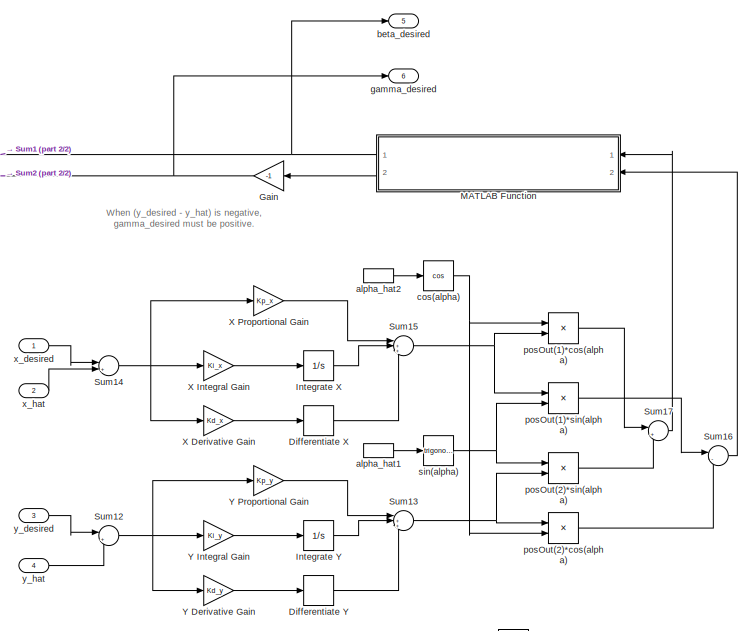
[diagram: PID Controller - part 1/2, top left region]
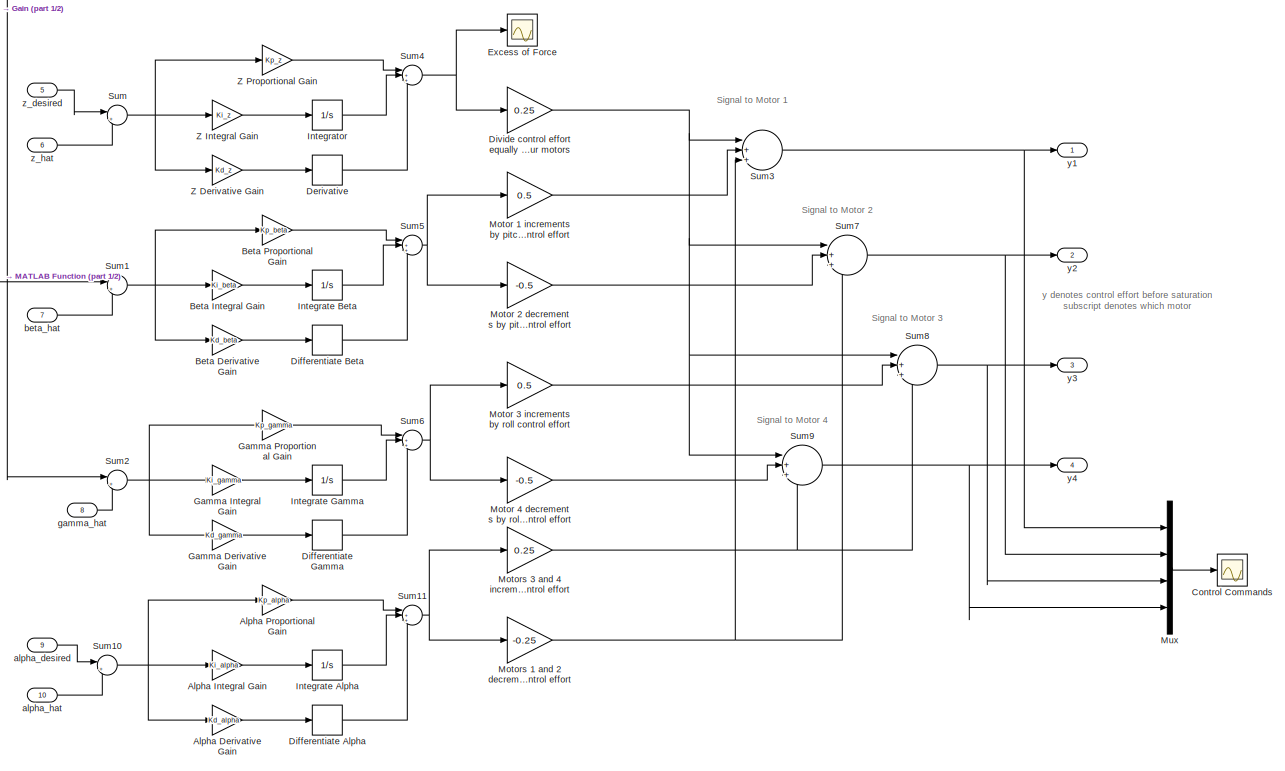
[diagram: PID Controller - part 2/2, full width, bottom band]
BLOCK [SubSystem] PID Controller
  Ports = [10, 6]
  RequestExecContextInheritance = off
BLOCK [Gain] PID Controller/Alpha Derivative Gain
  Gain = Kd_alpha
  OutDataTypeStr = Inherit: Inherit via internal rule
  ParamDataTypeStr = Inherit: Inherit via internal rule
  SaturateOnIntegerOverflow = off
BLOCK [Gain] PID Controller/Alpha Integral Gain
  Gain = Ki_alpha
  OutDataTypeStr = Inherit: Inherit via internal rule
  ParamDataTypeStr = Inherit: Inherit via internal rule
  SaturateOnIntegerOverflow = off
BLOCK [Gain] PID Controller/Alpha Proportional Gain
  Gain = Kp_alpha
  OutDataTypeStr = Inherit: Inherit via internal rule
  ParamDataTypeStr = Inherit: Inherit via internal rule
  SaturateOnIntegerOverflow = off
BLOCK [Gain] PID Controller/Beta Derivative Gain
  Gain = Kd_beta
  OutDataTypeStr = Inherit: Inherit via internal rule
  ParamDataTypeStr = Inherit: Inherit via internal rule
  SaturateOnIntegerOverflow = off
BLOCK [Gain] PID Controller/Beta Integral Gain
  Gain = Ki_beta
  OutDataTypeStr = Inherit: Inherit via internal rule
  ParamDataTypeStr = Inherit: Inherit via internal rule
  SaturateOnIntegerOverflow = off
BLOCK [Gain] PID Controller/Beta Proportional Gain
  Gain = Kp_beta
  OutDataTypeStr = Inherit: Inherit via internal rule
  ParamDataTypeStr = Inherit: Inherit via internal rule
  SaturateOnIntegerOverflow = off
BLOCK [Scope] PID Controller/Control Commands
  Floating = off
  LimitDataPoints = off
  NumInputPorts = 1
  Ports = [1]
  SaveName = ControlCommandScope
  SaveToWorkspace = on
  ShowLegends = off
  ZoomMode = yonly
BLOCK [Derivative] PID Controller/Derivative
BLOCK [Derivative] PID Controller/Differentiate Alpha
BLOCK [Derivative] PID Controller/Differentiate Beta
BLOCK [Derivative] PID Controller/Differentiate Gamma
BLOCK [Derivative] PID Controller/Differentiate X
BLOCK [Derivative] PID Controller/Differentiate Y
BLOCK [Gain] PID Controller/Divide control effort equally among the four motors
  Gain = 0.25
  OutDataTypeStr = Inherit: Inherit via internal rule
  ParamDataTypeStr = Inherit: Inherit via internal rule
  SaturateOnIntegerOverflow = off
BLOCK [Scope] PID Controller/Excess of Force
  Floating = off
  LimitDataPoints = off
  NumInputPorts = 1
  Ports = [1]
  SaveName = ExcessForce
  SaveToWorkspace = on
  ShowLegends = off
BLOCK [Gain] PID Controller/Gain
  Gain = -1
  OutDataTypeStr = Inherit: Inherit via internal rule
  ParamDataTypeStr = Inherit: Inherit via internal rule
  SaturateOnIntegerOverflow = off
BLOCK [Gain] PID Controller/Gamma Derivative Gain
  Gain = Kd_gamma
  OutDataTypeStr = Inherit: Inherit via internal rule
  ParamDataTypeStr = Inherit: Inherit via internal rule
  SaturateOnIntegerOverflow = off
BLOCK [Gain] PID Controller/Gamma Integral Gain
  Gain = Ki_gamma
  OutDataTypeStr = Inherit: Inherit via internal rule
  ParamDataTypeStr = Inherit: Inherit via internal rule
  SaturateOnIntegerOverflow = off
BLOCK [Gain] PID Controller/Gamma Proportional Gain
  Gain = Kp_gamma
  OutDataTypeStr = Inherit: Inherit via internal rule
  ParamDataTypeStr = Inherit: Inherit via internal rule
  SaturateOnIntegerOverflow = off
BLOCK [Integrator] PID Controller/Integrate Alpha
  Ports = [1, 1]
BLOCK [Integrator] PID Controller/Integrate Beta
  Ports = [1, 1]
BLOCK [Integrator] PID Controller/Integrate Gamma
  Ports = [1, 1]
BLOCK [Integrator] PID Controller/Integrate X
  Ports = [1, 1]
BLOCK [Integrator] PID Controller/Integrate Y
  Ports = [1, 1]
BLOCK [Integrator] PID Controller/Integrator
  Ports = [1, 1]
BLOCK [SubSystem] PID Controller/MATLAB Function
  ErrorFcn = Stateflow.Translate.translate
  PermitHierarchicalResolution = ExplicitOnly
  Ports = [2, 2]
  RequestExecContextInheritance = off
  SFBlockType = MATLAB Function
  TreatAsAtomicUnit = on
BLOCK [Demux] PID Controller/MATLAB Function/ Demux 
  Outputs = 1
  Ports = [1, 1]
BLOCK [S-Function] PID Controller/MATLAB Function/ SFunction 
  EnableBusSupport = on
  FunctionName = sf_sfun
  PortCounts = [2 3]
  Ports = [2, 3]
  Tag = Stateflow S-Function DFA_PID_Controller_ESC 23
BLOCK [Terminator] PID Controller/MATLAB Function/ Terminator 
BLOCK [Inport] PID Controller/MATLAB Function/beta_d_no_sat
  IconDisplay = Port number
BLOCK [Outport] PID Controller/MATLAB Function/beta_desired
  IconDisplay = Port number
BLOCK [Inport] PID Controller/MATLAB Function/gamma_d_no_sat
  IconDisplay = Port number
  Port = 2
BLOCK [Outport] PID Controller/MATLAB Function/gamma_desired
  IconDisplay = Port number
  Port = 2
BLOCK [Gain] PID Controller/Motor 1 increments by pitch control effort
  Gain = 0.5
  OutDataTypeStr = Inherit: Inherit via internal rule
  ParamDataTypeStr = Inherit: Inherit via internal rule
  SaturateOnIntegerOverflow = off
BLOCK [Gain] PID Controller/Motor 2 decrements by pitch control effort
  Gain = -0.5
  OutDataTypeStr = Inherit: Inherit via internal rule
  ParamDataTypeStr = Inherit: Inherit via internal rule
  SaturateOnIntegerOverflow = off
BLOCK [Gain] PID Controller/Motor 3 increments by roll control effort
  Gain = 0.5
  OutDataTypeStr = Inherit: Inherit via internal rule
  ParamDataTypeStr = Inherit: Inherit via internal rule
  SaturateOnIntegerOverflow = off
BLOCK [Gain] PID Controller/Motor 4 decrements by roll control effort
  Gain = -0.5
  OutDataTypeStr = Inherit: Inherit via internal rule
  ParamDataTypeStr = Inherit: Inherit via internal rule
  SaturateOnIntegerOverflow = off
BLOCK [Gain] PID Controller/Motors 1 and 2 decrement by the pitch control effort
  Gain = -0.25
  OutDataTypeStr = Inherit: Inherit via internal rule
  ParamDataTypeStr = Inherit: Inherit via internal rule
  SaturateOnIntegerOverflow = off
BLOCK [Gain] PID Controller/Motors 3 and 4 increment by the pitch control effort
  Gain = 0.25
  OutDataTypeStr = Inherit: Inherit via internal rule
  ParamDataTypeStr = Inherit: Inherit via internal rule
  SaturateOnIntegerOverflow = off
BLOCK [Mux] PID Controller/Mux
  DisplayOption = bar
  Ports = [4, 1]
BLOCK [Sum] PID Controller/Sum
  IconShape = round
  InputSameDT = off
  Inputs = |+-
  OutDataTypeStr = Inherit: Inherit via internal rule
  Ports = [2, 1]
  SaturateOnIntegerOverflow = off
BLOCK [Sum] PID Controller/Sum1
  IconShape = round
  InputSameDT = off
  Inputs = |+-
  OutDataTypeStr = Inherit: Inherit via internal rule
  Ports = [2, 1]
  SaturateOnIntegerOverflow = off
BLOCK [Sum] PID Controller/Sum10
  IconShape = round
  InputSameDT = off
  Inputs = |+-
  OutDataTypeStr = Inherit: Inherit via internal rule
  Ports = [2, 1]
  SaturateOnIntegerOverflow = off
BLOCK [Sum] PID Controller/Sum11
  IconShape = round
  InputSameDT = off
  Inputs = |+++
  OutDataTypeStr = Inherit: Inherit via internal rule
  Ports = [3, 1]
  SaturateOnIntegerOverflow = off
BLOCK [Sum] PID Controller/Sum12
  IconShape = round
  InputSameDT = off
  Inputs = |+-
  OutDataTypeStr = Inherit: Inherit via internal rule
  Ports = [2, 1]
  SaturateOnIntegerOverflow = off
BLOCK [Sum] PID Controller/Sum13
  IconShape = round
  InputSameDT = off
  Inputs = |+++
  OutDataTypeStr = Inherit: Inherit via internal rule
  Ports = [3, 1]
  SaturateOnIntegerOverflow = off
BLOCK [Sum] PID Controller/Sum14
  IconShape = round
  InputSameDT = off
  Inputs = |+-
  OutDataTypeStr = Inherit: Inherit via internal rule
  Ports = [2, 1]
  SaturateOnIntegerOverflow = off
BLOCK [Sum] PID Controller/Sum15
  IconShape = round
  InputSameDT = off
  Inputs = |+++
  OutDataTypeStr = Inherit: Inherit via internal rule
  Ports = [3, 1]
  SaturateOnIntegerOverflow = off
BLOCK [Sum] PID Controller/Sum16
  IconShape = round
  InputSameDT = off
  Inputs = |-+
  OutDataTypeStr = Inherit: Inherit via internal rule
  Ports = [2, 1]
  SaturateOnIntegerOverflow = off
BLOCK [Sum] PID Controller/Sum17
  IconShape = round
  InputSameDT = off
  Inputs = |++
  OutDataTypeStr = Inherit: Inherit via internal rule
  Ports = [2, 1]
  SaturateOnIntegerOverflow = off
BLOCK [Sum] PID Controller/Sum2
  IconShape = round
  InputSameDT = off
  Inputs = |+-
  OutDataTypeStr = Inherit: Inherit via internal rule
  Ports = [2, 1]
  SaturateOnIntegerOverflow = off
BLOCK [Sum] PID Controller/Sum3
  IconShape = round
  InputSameDT = off
  Inputs = |+++
  OutDataTypeStr = Inherit: Inherit via internal rule
  Ports = [3, 1]
  SaturateOnIntegerOverflow = off
BLOCK [Sum] PID Controller/Sum4
  IconShape = round
  InputSameDT = off
  Inputs = |+++
  OutDataTypeStr = Inherit: Inherit via internal rule
  Ports = [3, 1]
  SaturateOnIntegerOverflow = off
BLOCK [Sum] PID Controller/Sum5
  IconShape = round
  InputSameDT = off
  Inputs = |+++
  OutDataTypeStr = Inherit: Inherit via internal rule
  Ports = [3, 1]
  SaturateOnIntegerOverflow = off
BLOCK [Sum] PID Controller/Sum6
  IconShape = round
  InputSameDT = off
  Inputs = |+++
  OutDataTypeStr = Inherit: Inherit via internal rule
  Ports = [3, 1]
  SaturateOnIntegerOverflow = off
BLOCK [Sum] PID Controller/Sum7
  IconShape = round
  InputSameDT = off
  Inputs = |+++
  OutDataTypeStr = Inherit: Inherit via internal rule
  Ports = [3, 1]
  SaturateOnIntegerOverflow = off
BLOCK [Sum] PID Controller/Sum8
  IconShape = round
  InputSameDT = off
  Inputs = |+++
  OutDataTypeStr = Inherit: Inherit via internal rule
  Ports = [3, 1]
  SaturateOnIntegerOverflow = off
BLOCK [Sum] PID Controller/Sum9
  IconShape = round
  InputSameDT = off
  Inputs = |+++
  OutDataTypeStr = Inherit: Inherit via internal rule
  Ports = [3, 1]
  SaturateOnIntegerOverflow = off
BLOCK [Gain] PID Controller/X Derivative Gain
  Gain = Kd_x
  OutDataTypeStr = Inherit: Inherit via internal rule
  ParamDataTypeStr = Inherit: Inherit via internal rule
  SaturateOnIntegerOverflow = off
BLOCK [Gain] PID Controller/X Integral Gain
  Gain = Ki_x
  OutDataTypeStr = Inherit: Inherit via internal rule
  ParamDataTypeStr = Inherit: Inherit via internal rule
  SaturateOnIntegerOverflow = off
BLOCK [Gain] PID Controller/X Proportional Gain
  Gain = Kp_x
  OutDataTypeStr = Inherit: Inherit via internal rule
  ParamDataTypeStr = Inherit: Inherit via internal rule
  SaturateOnIntegerOverflow = off
BLOCK [Gain] PID Controller/Y Derivative Gain
  Gain = Kd_y
  OutDataTypeStr = Inherit: Inherit via internal rule
  ParamDataTypeStr = Inherit: Inherit via internal rule
  SaturateOnIntegerOverflow = off
BLOCK [Gain] PID Controller/Y Integral Gain
  Gain = Ki_y
  OutDataTypeStr = Inherit: Inherit via internal rule
  ParamDataTypeStr = Inherit: Inherit via internal rule
  SaturateOnIntegerOverflow = off
BLOCK [Gain] PID Controller/Y Proportional Gain
  Gain = Kp_y
  OutDataTypeStr = Inherit: Inherit via internal rule
  ParamDataTypeStr = Inherit: Inherit via internal rule
  SaturateOnIntegerOverflow = off
BLOCK [Gain] PID Controller/Z Derivative Gain
  Gain = Kd_z
  OutDataTypeStr = Inherit: Inherit via internal rule
  ParamDataTypeStr = Inherit: Inherit via internal rule
  SaturateOnIntegerOverflow = off
BLOCK [Gain] PID Controller/Z Integral Gain
  Gain = Ki_z
  OutDataTypeStr = Inherit: Inherit via internal rule
  ParamDataTypeStr = Inherit: Inherit via internal rule
  SaturateOnIntegerOverflow = off
BLOCK [Gain] PID Controller/Z Proportional Gain
  Gain = Kp_z
  OutDataTypeStr = Inherit: Inherit via internal rule
  ParamDataTypeStr = Inherit: Inherit via internal rule
  SaturateOnIntegerOverflow = off
BLOCK [Inport] PID Controller/alpha_desired
  IconDisplay = Port number
  Port = 9
BLOCK [Inport] PID Controller/alpha_hat
  IconDisplay = Port number
  Port = 10
BLOCK [InportShadow] PID Controller/alpha_hat1
  IconDisplay = Port number
  Port = 10
BLOCK [InportShadow] PID Controller/alpha_hat2
  IconDisplay = Port number
  Port = 10
BLOCK [Outport] PID Controller/beta_desired
  IconDisplay = Port number
  Port = 5
BLOCK [Inport] PID Controller/beta_hat
  IconDisplay = Port number
  Port = 7
BLOCK [Trigonometry] PID Controller/cos(alpha)
  Operator = cos
  Ports = [1, 1]
BLOCK [Outport] PID Controller/gamma_desired
  IconDisplay = Port number
  Port = 6
BLOCK [Inport] PID Controller/gamma_hat
  IconDisplay = Port number
  Port = 8
BLOCK [Product] PID Controller/posOut(1)*cos(alpha)
  InputSameDT = off
  OutDataTypeStr = Inherit: Inherit via internal rule
  Ports = [2, 1]
  RndMeth = Floor
  SaturateOnIntegerOverflow = off
BLOCK [Product] PID Controller/posOut(1)*sin(alpha)
  InputSameDT = off
  OutDataTypeStr = Inherit: Inherit via internal rule
  Ports = [2, 1]
  RndMeth = Floor
  SaturateOnIntegerOverflow = off
BLOCK [Product] PID Controller/posOut(2)*cos(alpha)
  InputSameDT = off
  OutDataTypeStr = Inherit: Inherit via internal rule
  Ports = [2, 1]
  RndMeth = Floor
  SaturateOnIntegerOverflow = off
BLOCK [Product] PID Controller/posOut(2)*sin(alpha)
  InputSameDT = off
  OutDataTypeStr = Inherit: Inherit via internal rule
  Ports = [2, 1]
  RndMeth = Floor
  SaturateOnIntegerOverflow = off
BLOCK [Trigonometry] PID Controller/sin(alpha)
  Ports = [1, 1]
BLOCK [Inport] PID Controller/x_desired
  IconDisplay = Port number
BLOCK [Inport] PID Controller/x_hat
  IconDisplay = Port number
  Port = 2
BLOCK [Outport] PID Controller/y1
  IconDisplay = Port number
BLOCK [Outport] PID Controller/y2
  IconDisplay = Port number
  Port = 2
BLOCK [Outport] PID Controller/y3
  IconDisplay = Port number
  Port = 3
BLOCK [Outport] PID Controller/y4
  IconDisplay = Port number
  Port = 4
BLOCK [Inport] PID Controller/y_desired
  IconDisplay = Port number
  Port = 3
BLOCK [Inport] PID Controller/y_hat
  IconDisplay = Port number
  Port = 4
BLOCK [Inport] PID Controller/z_desired
  IconDisplay = Port number
  Port = 5
BLOCK [Inport] PID Controller/z_hat
  IconDisplay = Port number
  Port = 6
BLOCK [Constant] Pause Time
  Value = 0.01
BLOCK [Scope] PositionMeas
  DataFormat = StructureWithTime
  Floating = off
  LimitDataPoints = off
  NumInputPorts = 1
  Ports = [1]
  SampleTime = 0
  SaveName = PositionMeas
  SaveToWorkspace = on
  ShowLegends = off
  YMax = 0.5
  YMin = -0.025
  ZoomMode = yonly
BLOCK [Scope] PositionReal
  DataFormat = StructureWithTime
  Floating = off
  LimitDataPoints = off
  NumInputPorts = 1
  Ports = [1]
  SampleTime = 0
  SaveName = PositionReal
  SaveToWorkspace = on
  ShowLegends = off
  YMax = 0.275
  YMin = 0
  ZoomMode = xonly
BLOCK [RelationalOperator] Relational Operator
  InputSameDT = off
  Operator = <=
  OutDataTypeStr = boolean
  Ports = [2, 1]
BLOCK [Scope] Scope1
  DataFormat = StructureWithTime
  Floating = off
  NumInputPorts = 1
  Ports = [1]
  SampleTime = 0
  SaveName = ScopeData1
  ShowLegends = off
  ZoomMode = xonly
BLOCK [Constant] Sensor Noise
  Value = SENS_NOISE01
BLOCK [ToWorkspace] To Workspace
  FixptAsFi = on
  MaxDataPoints = inf
  Ports = [1]
  SampleTime = -1
  Save2DSignal = 2-D array (concatenate along first dimension)
  VariableName = simout
BLOCK [UnitDelay] Unit Delay
  InputProcessing = Elements as channels (sample based)
  SampleTime = -1
BLOCK [Constant] Z_desired
  Value = z_desired
BLOCK [ZeroOrderHold] Zero-Order Hold
  SampleTime = -1
BLOCK [Constant] alpha_d
  Value = alpha_desired
ANNOTATION (root): Gamma is roll Beta is pitch Alpha is yaw These are different in the FullController.m file, where gamma is yaw and alpha is roll.
ANNOTATION (root): CHANGE PID GAINS FOR BETA, GAMMA IF ANGLE DOES NOT TRACK DESIRED ANGLE WELL CHANGE PID GAINS FOR X, Y IF POSITIONS DO NOT TRACK WELL
ANNOTATION (root): ESC to Thrust
ANNOTATION (root): Jacopo 4-6-2015 // Next Steps: --------------------------------------------------- 1) Deal with numerical instability (Change angles to quaternions) 2) insert KF 3) Dynamic formation GUI
ANNOTATION (root): SCOPES X = yellow Y = purple Z = blue
ANNOTATION (root): SENSORS
ANNOTATION Nonlinear Attitude Dynamics: (p,q,r) are rates of change of roll, pitch, and yaw in the DFA's coordinate frame.
ANNOTATION Nonlinear Attitude Dynamics: Equations 16, 17, and 18 are from the DFA_DESIGN_DETAILS paper
ANNOTATION Nonlinear Attitude Dynamics: alpha
ANNOTATION Nonlinear Attitude Dynamics: beta
ANNOTATION Nonlinear Attitude Dynamics: ci
ANNOTATION Nonlinear Attitude Dynamics: forces
ANNOTATION Nonlinear Attitude Dynamics: gamma
ANNOTATION Nonlinear Attitude Dynamics: q
ANNOTATION Nonlinear Attitude Dynamics: xi
ANNOTATION Nonlinear Attitude Dynamics: yi
ANNOTATION Nonlinear Attitude Dynamics/Equation 15: z
ANNOTATION Nonlinear Attitude Dynamics/Equation 16: Do I need delays?
ANNOTATION Nonlinear Attitude Dynamics/Equation 16: Nx1
ANNOTATION Nonlinear Attitude Dynamics/Equation 16: p
ANNOTATION Nonlinear Attitude Dynamics/Equations 25 and 27: alpha
ANNOTATION Nonlinear Attitude Dynamics/Equations 25 and 27: alpha_dot
ANNOTATION Nonlinear Attitude Dynamics/Equations 25 and 27: beta
ANNOTATION Nonlinear Attitude Dynamics/Equations 25 and 27: beta_dot
ANNOTATION Nonlinear Attitude Dynamics/Equations 25 and 27: gamma_dot
ANNOTATION PID Controller: Signal to Motor 1
ANNOTATION PID Controller: Signal to Motor 2
ANNOTATION PID Controller: Signal to Motor 3
ANNOTATION PID Controller: Signal to Motor 4
ANNOTATION PID Controller: When (y_desired - y_hat) is negative, gamma_desired must be positive.
ANNOTATION PID Controller: y denotes control effort before saturation subscript denotes which motor
NET 3D Motion Capture System/SENS-ON//OFF:1 -> 3D Motion Capture System/X Noise:4, 3D Motion Capture System/X_dot Noise:4, 3D Motion Capture System/Y Noise:4, 3D Motion Capture System/Y_dot Noise:4
NET 3D Motion Capture System/ThreeD Bias:1 -> 3D Motion Capture System/X Noise:2, 3D Motion Capture System/X_dot Noise:2, 3D Motion Capture System/Y Noise:2, 3D Motion Capture System/Y_dot Noise:2
LINE 3D Motion Capture System/X Noise:1 -> 3D Motion Capture System/x_hat:1
LINE 3D Motion Capture System/X Standard Deviation:1 -> 3D Motion Capture System/X Noise:3
LINE 3D Motion Capture System/X_dot Noise:1 -> 3D Motion Capture System/x_dot_hat:1
LINE 3D Motion Capture System/X_dot Standard Deviation:1 -> 3D Motion Capture System/X_dot Noise:3
LINE 3D Motion Capture System/Y Noise:1 -> 3D Motion Capture System/y_hat:1
LINE 3D Motion Capture System/Y Standard Deviation:1 -> 3D Motion Capture System/Y Noise:3
LINE 3D Motion Capture System/Y_dot Noise:1 -> 3D Motion Capture System/y_dot_hat:1
LINE 3D Motion Capture System/Y_dot Standard Deviation1:1 -> 3D Motion Capture System/Y_dot Noise:3
LINE 3D Motion Capture System/x:1 -> 3D Motion Capture System/X Noise:1
LINE 3D Motion Capture System/x_dot:1 -> 3D Motion Capture System/X_dot Noise:1
LINE 3D Motion Capture System/y:1 -> 3D Motion Capture System/Y Noise:1
LINE 3D Motion Capture System/y_dot:1 -> 3D Motion Capture System/Y_dot Noise:1
NET 3D Motion Capture System:1 -> Mux1:1, PID Controller:2
NET 3D Motion Capture System:2 -> Mux1:2, PID Controller:4
NET Accelerometer/Accelerometer Bias:1 -> Accelerometer/Alpha_dot Noise:2, Accelerometer/Beta_dot Noise:2, Accelerometer/Gamma_dot Noise:2
LINE Accelerometer/Alpha_dot Noise:1 -> Accelerometer/alpha_dot_hat:1
LINE Accelerometer/Alpha_dot Standard Deviation:1 -> Accelerometer/Alpha_dot Noise:3
LINE Accelerometer/Beta_dot Noise:1 -> Accelerometer/beta_dot_hat:1
LINE Accelerometer/Beta_dot Standard Deviation:1 -> Accelerometer/Beta_dot Noise:3
LINE Accelerometer/Gamma_dot Noise:1 -> Accelerometer/gamma_dot_hat:1
LINE Accelerometer/Gamma_dot Standard Deviation:1 -> Accelerometer/Gamma_dot Noise:3
NET Accelerometer/SENS-ON//OFF:1 -> Accelerometer/Alpha_dot Noise:4, Accelerometer/Beta_dot Noise:4, Accelerometer/Gamma_dot Noise:4
LINE Accelerometer/alpha_dot:1 -> Accelerometer/Alpha_dot Noise:1
LINE Accelerometer/beta_dot:1 -> Accelerometer/Beta_dot Noise:1
LINE Accelerometer/gamma_dot:1 -> Accelerometer/Gamma_dot Noise:1
NET Delay:1 -> Excess of Force:1, Forces:1, Nonlinear Attitude Dynamics:1
LINE ESC1:1 -> Mux3:1
LINE ESC2:1 -> Mux3:2
LINE ESC3:1 -> Mux3:3
LINE ESC4:1 -> Mux3:4
LINE Gyroscope/Alpha Noise:1 -> Gyroscope/alpha_hat:1
LINE Gyroscope/Alpha Standard Deviation:1 -> Gyroscope/Alpha Noise:3
LINE Gyroscope/Beta Noise:1 -> Gyroscope/beta_hat:1
LINE Gyroscope/Beta Standard Deviation:1 -> Gyroscope/Beta Noise:3
LINE Gyroscope/Gamma Noise:1 -> Gyroscope/gamma_hat:1
LINE Gyroscope/Gamma Standard Deviation:1 -> Gyroscope/Gamma Noise:3
NET Gyroscope/Gyro Bias:1 -> Gyroscope/Alpha Noise:2, Gyroscope/Beta Noise:2, Gyroscope/Gamma Noise:2
NET Gyroscope/SENS-ON//OFF:1 -> Gyroscope/Alpha Noise:4, Gyroscope/Beta Noise:4, Gyroscope/Gamma Noise:4
LINE Gyroscope/alpha:1 -> Gyroscope/Alpha Noise:1
LINE Gyroscope/beta:1 -> Gyroscope/Beta Noise:1
LINE Gyroscope/gamma:1 -> Gyroscope/Gamma Noise:1
NET Gyroscope:1 -> Mux2:1, PID Controller:10
NET Gyroscope:2 -> Mux2:2, PID Controller:7
NET Gyroscope:3 -> Mux2:3, PID Controller:8
NET IR Sensor/IR Bias:1 -> IR Sensor/Z Noise:2, IR Sensor/Z_dot Noise:2
NET IR Sensor/SENS-ON//OFF:1 -> IR Sensor/Z Noise:4, IR Sensor/Z_dot Noise:4
LINE IR Sensor/Z Noise:1 -> IR Sensor/z_hat:1
NET IR Sensor/Z Standard Deviation:1 -> IR Sensor/Z Noise:3, IR Sensor/Z_dot Noise:3
LINE IR Sensor/Z_dot Noise:1 -> IR Sensor/z_dot_hat:1
LINE IR Sensor/z:1 -> IR Sensor/Z Noise:1
LINE IR Sensor/z_dot:1 -> IR Sensor/Z_dot Noise:1
NET IR Sensor:1 -> Mux1:3, PID Controller:6
LINE MATLAB Function1:1 -> Zero-Order Hold:1
NET MATLAB Function:1 -> Mux5:1, PID Controller:1
NET MATLAB Function:2 -> Mux5:2, PID Controller:3
NET MATLAB Function:3 -> Mux5:3, PID Controller:5
NET MATLAB Function:4 -> Mux5:4, PID Controller:9
LINE Mux1:1 -> PositionMeas:1
LINE Mux2:1 -> AngleMeas:1
LINE Mux3:1 -> Delay:1
LINE Mux4:1 -> AngleReal:1
NET Mux5:1 -> Scope1:1, To Workspace:1
LINE Mux:1 -> PositionReal:1
NET Nonlinear Attitude Dynamics/Equation 13/Divide:1 -> Nonlinear Attitude Dynamics/Equation 13/Integrator1:1, Nonlinear Attitude Dynamics/Equation 13/Scope:1, Nonlinear Attitude Dynamics/Equation 13/x_ddot:1
NET Nonlinear Attitude Dynamics/Equation 13/Integrator1:1 -> Nonlinear Attitude Dynamics/Equation 13/Integrator:1, Nonlinear Attitude Dynamics/Equation 13/Scope1:1, Nonlinear Attitude Dynamics/Equation 13/x_dot:1
LINE Nonlinear Attitude Dynamics/Equation 13/Integrator:1 -> Nonlinear Attitude Dynamics/Equation 13/x:1
LINE Nonlinear Attitude Dynamics/Equation 13/Product1:1 -> Nonlinear Attitude Dynamics/Equation 13/Divide:1
LINE Nonlinear Attitude Dynamics/Equation 13/Sum of Elements1:1 -> Nonlinear Attitude Dynamics/Equation 13/Product1:1
LINE Nonlinear Attitude Dynamics/Equation 13/Total Mass:1 -> Nonlinear Attitude Dynamics/Equation 13/Divide:2
LINE Nonlinear Attitude Dynamics/Equation 13/alpha:1 -> Nonlinear Attitude Dynamics/Equation 13/angles_1:1
LINE Nonlinear Attitude Dynamics/Equation 13/angles_1:1 -> Nonlinear Attitude Dynamics/Equation 13/Product1:2
LINE Nonlinear Attitude Dynamics/Equation 13/beta:1 -> Nonlinear Attitude Dynamics/Equation 13/angles_1:2
LINE Nonlinear Attitude Dynamics/Equation 13/forces:1 -> Nonlinear Attitude Dynamics/Equation 13/Sum of Elements1:1
LINE Nonlinear Attitude Dynamics/Equation 13/gamma:1 -> Nonlinear Attitude Dynamics/Equation 13/angles_1:3
LINE Nonlinear Attitude Dynamics/Equation 13:1 -> Nonlinear Attitude Dynamics/x:1
LINE Nonlinear Attitude Dynamics/Equation 13:2 -> Nonlinear Attitude Dynamics/x_dot:1
LINE Nonlinear Attitude Dynamics/Equation 13:3 -> Nonlinear Attitude Dynamics/x_ddot:1
NET Nonlinear Attitude Dynamics/Equation 14/Divide:1 -> Nonlinear Attitude Dynamics/Equation 14/Integrator1:1, Nonlinear Attitude Dynamics/Equation 14/Scope:1, Nonlinear Attitude Dynamics/Equation 14/y_ddot:1
NET Nonlinear Attitude Dynamics/Equation 14/Integrator1:1 -> Nonlinear Attitude Dynamics/Equation 14/Integrator:1, Nonlinear Attitude Dynamics/Equation 14/Scope1:1, Nonlinear Attitude Dynamics/Equation 14/y_dot:1
LINE Nonlinear Attitude Dynamics/Equation 14/Integrator:1 -> Nonlinear Attitude Dynamics/Equation 14/y:1
LINE Nonlinear Attitude Dynamics/Equation 14/Product1:1 -> Nonlinear Attitude Dynamics/Equation 14/Divide:1
LINE Nonlinear Attitude Dynamics/Equation 14/Sum of Elements1:1 -> Nonlinear Attitude Dynamics/Equation 14/Product1:1
LINE Nonlinear Attitude Dynamics/Equation 14/Total Mass:1 -> Nonlinear Attitude Dynamics/Equation 14/Divide:2
LINE Nonlinear Attitude Dynamics/Equation 14/alpha:1 -> Nonlinear Attitude Dynamics/Equation 14/angles_2:1
LINE Nonlinear Attitude Dynamics/Equation 14/angles_2:1 -> Nonlinear Attitude Dynamics/Equation 14/Product1:2
LINE Nonlinear Attitude Dynamics/Equation 14/beta:1 -> Nonlinear Attitude Dynamics/Equation 14/angles_2:2
LINE Nonlinear Attitude Dynamics/Equation 14/forces:1 -> Nonlinear Attitude Dynamics/Equation 14/Sum of Elements1:1
LINE Nonlinear Attitude Dynamics/Equation 14/gamma:1 -> Nonlinear Attitude Dynamics/Equation 14/angles_2:3
LINE Nonlinear Attitude Dynamics/Equation 14:1 -> Nonlinear Attitude Dynamics/y:1
LINE Nonlinear Attitude Dynamics/Equation 14:2 -> Nonlinear Attitude Dynamics/y_dot:1
LINE Nonlinear Attitude Dynamics/Equation 14:3 -> Nonlinear Attitude Dynamics/y_ddot:1
NET Nonlinear Attitude Dynamics/Equation 15/Divide:1 -> Nonlinear Attitude Dynamics/Equation 15/Integrator1:1, Nonlinear Attitude Dynamics/Equation 15/Scope:1
NET Nonlinear Attitude Dynamics/Equation 15/Integrator1:1 -> Nonlinear Attitude Dynamics/Equation 15/Integrator:1, Nonlinear Attitude Dynamics/Equation 15/Scope1:1, Nonlinear Attitude Dynamics/Equation 15/z_dot:1
LINE Nonlinear Attitude Dynamics/Equation 15/Integrator:1 -> Nonlinear Attitude Dynamics/Equation 15/z:1
LINE Nonlinear Attitude Dynamics/Equation 15/Product1:1 -> Nonlinear Attitude Dynamics/Equation 15/Subtract:1
LINE Nonlinear Attitude Dynamics/Equation 15/Subtract:1 -> Nonlinear Attitude Dynamics/Equation 15/Divide:1
LINE Nonlinear Attitude Dynamics/Equation 15/Sum of Elements:1 -> Nonlinear Attitude Dynamics/Equation 15/Product1:1
LINE Nonlinear Attitude Dynamics/Equation 15/Total Mass:1 -> Nonlinear Attitude Dynamics/Equation 15/Divide:2
LINE Nonlinear Attitude Dynamics/Equation 15/Total Weight:1 -> Nonlinear Attitude Dynamics/Equation 15/Subtract:2
LINE Nonlinear Attitude Dynamics/Equation 15/angles_3:1 -> Nonlinear Attitude Dynamics/Equation 15/Product1:2
LINE Nonlinear Attitude Dynamics/Equation 15/beta:1 -> Nonlinear Attitude Dynamics/Equation 15/angles_3:1
LINE Nonlinear Attitude Dynamics/Equation 15/forces:1 -> Nonlinear Attitude Dynamics/Equation 15/Sum of Elements:1
LINE Nonlinear Attitude Dynamics/Equation 15/gamma:1 -> Nonlinear Attitude Dynamics/Equation 15/angles_3:2
LINE Nonlinear Attitude Dynamics/Equation 15:1 -> Nonlinear Attitude Dynamics/z:1
LINE Nonlinear Attitude Dynamics/Equation 15:2 -> Nonlinear Attitude Dynamics/z_dot:1
LINE Nonlinear Attitude Dynamics/Equation 16/Add:1 -> Nonlinear Attitude Dynamics/Equation 16/Divide:1
LINE Nonlinear Attitude Dynamics/Equation 16/Constant2:1 -> Nonlinear Attitude Dynamics/Equation 16/Divide:2
NET Nonlinear Attitude Dynamics/Equation 16/Divide:1 -> Nonlinear Attitude Dynamics/Equation 16/Integrator1:1, Nonlinear Attitude Dynamics/Equation 16/Scope1:1
LINE Nonlinear Attitude Dynamics/Equation 16/Integrator1:1 -> Nonlinear Attitude Dynamics/Equation 16/p:1
LINE Nonlinear Attitude Dynamics/Equation 16/Iy-Iz:1 -> Nonlinear Attitude Dynamics/Equation 16/Add:2
LINE Nonlinear Attitude Dynamics/Equation 16/Product3:1 -> Nonlinear Attitude Dynamics/Equation 16/Sum of Elements:1
LINE Nonlinear Attitude Dynamics/Equation 16/Product4:1 -> Nonlinear Attitude Dynamics/Equation 16/Iy-Iz:1
LINE Nonlinear Attitude Dynamics/Equation 16/Sum of Elements:1 -> Nonlinear Attitude Dynamics/Equation 16/Add:1
LINE Nonlinear Attitude Dynamics/Equation 16/forces:1 -> Nonlinear Attitude Dynamics/Equation 16/Product3:1
LINE Nonlinear Attitude Dynamics/Equation 16/q:1 -> Nonlinear Attitude Dynamics/Equation 16/Product4:2
LINE Nonlinear Attitude Dynamics/Equation 16/r:1 -> Nonlinear Attitude Dynamics/Equation 16/Product4:1
LINE Nonlinear Attitude Dynamics/Equation 16/yi:1 -> Nonlinear Attitude Dynamics/Equation 16/Product3:2
NET Nonlinear Attitude Dynamics/Equation 16:1 -> Nonlinear Attitude Dynamics/Equation 17:3, Nonlinear Attitude Dynamics/Equation 18:3, Nonlinear Attitude Dynamics/Equations 25 and 27:1, Nonlinear Attitude Dynamics/Mux1:3
LINE Nonlinear Attitude Dynamics/Equation 17/Add:1 -> Nonlinear Attitude Dynamics/Equation 17/Divide1:1
LINE Nonlinear Attitude Dynamics/Equation 17/Constant1:1 -> Nonlinear Attitude Dynamics/Equation 17/Divide1:2
NET Nonlinear Attitude Dynamics/Equation 17/Divide1:1 -> Nonlinear Attitude Dynamics/Equation 17/Integrator2:1, Nonlinear Attitude Dynamics/Equation 17/q_dotScope:1
LINE Nonlinear Attitude Dynamics/Equation 17/Integrator2:1 -> Nonlinear Attitude Dynamics/Equation 17/q:1
LINE Nonlinear Attitude Dynamics/Equation 17/Iz-Ix:1 -> Nonlinear Attitude Dynamics/Equation 17/Add:2
LINE Nonlinear Attitude Dynamics/Equation 17/Product1:1 -> Nonlinear Attitude Dynamics/Equation 17/Sum of Elements1:1
LINE Nonlinear Attitude Dynamics/Equation 17/Product2:1 -> Nonlinear Attitude Dynamics/Equation 17/Iz-Ix:1
LINE Nonlinear Attitude Dynamics/Equation 17/Sum of Elements1:1 -> Nonlinear Attitude Dynamics/Equation 17/Add:1
LINE Nonlinear Attitude Dynamics/Equation 17/forces:1 -> Nonlinear Attitude Dynamics/Equation 17/Product1:1
LINE Nonlinear Attitude Dynamics/Equation 17/p:1 -> Nonlinear Attitude Dynamics/Equation 17/Product2:1
LINE Nonlinear Attitude Dynamics/Equation 17/r:1 -> Nonlinear Attitude Dynamics/Equation 17/Product2:2
LINE Nonlinear Attitude Dynamics/Equation 17/xi:1 -> Nonlinear Attitude Dynamics/Equation 17/Product1:2
NET Nonlinear Attitude Dynamics/Equation 17:1 -> Nonlinear Attitude Dynamics/Equation 16:3, Nonlinear Attitude Dynamics/Equation 18:4, Nonlinear Attitude Dynamics/Equations 25 and 27:2, Nonlinear Attitude Dynamics/Mux1:2
LINE Nonlinear Attitude Dynamics/Equation 18/Add:1 -> Nonlinear Attitude Dynamics/Equation 18/Divide:1
LINE Nonlinear Attitude Dynamics/Equation 18/Constant:1 -> Nonlinear Attitude Dynamics/Equation 18/Divide:2
NET Nonlinear Attitude Dynamics/Equation 18/Divide:1 -> Nonlinear Attitude Dynamics/Equation 18/Integrator1:1, Nonlinear Attitude Dynamics/Equation 18/Scope:1
LINE Nonlinear Attitude Dynamics/Equation 18/Integrator1:1 -> Nonlinear Attitude Dynamics/Equation 18/r:1
LINE Nonlinear Attitude Dynamics/Equation 18/Ix-Iy:1 -> Nonlinear Attitude Dynamics/Equation 18/Add:2
LINE Nonlinear Attitude Dynamics/Equation 18/Product1:1 -> Nonlinear Attitude Dynamics/Equation 18/Ix-Iy:1
LINE Nonlinear Attitude Dynamics/Equation 18/Product:1 -> Nonlinear Attitude Dynamics/Equation 18/Sum of Elements:1
LINE Nonlinear Attitude Dynamics/Equation 18/Sum of Elements:1 -> Nonlinear Attitude Dynamics/Equation 18/Add:1
LINE Nonlinear Attitude Dynamics/Equation 18/ci:1 -> Nonlinear Attitude Dynamics/Equation 18/Product:2
LINE Nonlinear Attitude Dynamics/Equation 18/forces:1 -> Nonlinear Attitude Dynamics/Equation 18/Product:1
LINE Nonlinear Attitude Dynamics/Equation 18/p:1 -> Nonlinear Attitude Dynamics/Equation 18/Product1:1
LINE Nonlinear Attitude Dynamics/Equation 18/q:1 -> Nonlinear Attitude Dynamics/Equation 18/Product1:2
NET Nonlinear Attitude Dynamics/Equation 18:1 -> Nonlinear Attitude Dynamics/Equation 16:4, Nonlinear Attitude Dynamics/Equation 17:4, Nonlinear Attitude Dynamics/Equations 25 and 27:3, Nonlinear Attitude Dynamics/Mux1:1
LINE Nonlinear Attitude Dynamics/Equations 25 and 27/1:1 -> Nonlinear Attitude Dynamics/Equations 25 and 27/sec(beta):2
NET Nonlinear Attitude Dynamics/Equations 25 and 27/Add1:1 -> Nonlinear Attitude Dynamics/Equations 25 and 27/Integrator1:1, Nonlinear Attitude Dynamics/Equations 25 and 27/beta_dot:1
NET Nonlinear Attitude Dynamics/Equations 25 and 27/Add2:1 -> Nonlinear Attitude Dynamics/Equations 25 and 27/Integrator2:1, Nonlinear Attitude Dynamics/Equations 25 and 27/alpha_dot:1
NET Nonlinear Attitude Dynamics/Equations 25 and 27/Add:1 -> Nonlinear Attitude Dynamics/Equations 25 and 27/Integrator:1, Nonlinear Attitude Dynamics/Equations 25 and 27/gamma_dot:1
NET Nonlinear Attitude Dynamics/Equations 25 and 27/Integrator1:1 -> Nonlinear Attitude Dynamics/Equations 25 and 27/beta:1, Nonlinear Attitude Dynamics/Equations 25 and 27/cos(beta):1, Nonlinear Attitude Dynamics/Equations 25 and 27/tan(beta):1
LINE Nonlinear Attitude Dynamics/Equations 25 and 27/Integrator2:1 -> Nonlinear Attitude Dynamics/Equations 25 and 27/alpha:1
NET Nonlinear Attitude Dynamics/Equations 25 and 27/Integrator:1 -> Nonlinear Attitude Dynamics/Equations 25 and 27/cos(gamma)2:1, Nonlinear Attitude Dynamics/Equations 25 and 27/cos(gamma):1, Nonlinear Attitude Dynamics/Equations 25 and 27/gamma:1, Nonlinear Attitude Dynamics/Equations 25 and 27/sin(gamma)1:1, Nonlinear Attitude Dynamics/Equations 25 and 27/sin(gamma):1
LINE Nonlinear Attitude Dynamics/Equations 25 and 27/cos(beta):1 -> Nonlinear Attitude Dynamics/Equations 25 and 27/sec(beta):1
LINE Nonlinear Attitude Dynamics/Equations 25 and 27/cos(gamma)2:1 -> Nonlinear Attitude Dynamics/Equations 25 and 27/r*cos(gamma)*sec(beta):1
NET Nonlinear Attitude Dynamics/Equations 25 and 27/cos(gamma):1 -> Nonlinear Attitude Dynamics/Equations 25 and 27/q*cos(gamma):1, Nonlinear Attitude Dynamics/Equations 25 and 27/r*tan(beta)*cos(gamma):1
LINE Nonlinear Attitude Dynamics/Equations 25 and 27/p:1 -> Nonlinear Attitude Dynamics/Equations 25 and 27/Add:1
LINE Nonlinear Attitude Dynamics/Equations 25 and 27/q*cos(gamma):1 -> Nonlinear Attitude Dynamics/Equations 25 and 27/Add1:1
LINE Nonlinear Attitude Dynamics/Equations 25 and 27/q*sin(gamma)*sec(beta):1 -> Nonlinear Attitude Dynamics/Equations 25 and 27/Add2:1
LINE Nonlinear Attitude Dynamics/Equations 25 and 27/q*sin(gamma)*tan(beta):1 -> Nonlinear Attitude Dynamics/Equations 25 and 27/Add:2
NET Nonlinear Attitude Dynamics/Equations 25 and 27/q:1 -> Nonlinear Attitude Dynamics/Equations 25 and 27/q*cos(gamma):2, Nonlinear Attitude Dynamics/Equations 25 and 27/q*sin(gamma)*sec(beta):3, Nonlinear Attitude Dynamics/Equations 25 and 27/q*sin(gamma)*tan(beta):3
LINE Nonlinear Attitude Dynamics/Equations 25 and 27/r*cos(gamma)*sec(beta):1 -> Nonlinear Attitude Dynamics/Equations 25 and 27/Add2:2
LINE Nonlinear Attitude Dynamics/Equations 25 and 27/r*sin(gamma):1 -> Nonlinear Attitude Dynamics/Equations 25 and 27/Add1:2
LINE Nonlinear Attitude Dynamics/Equations 25 and 27/r*tan(beta)*cos(gamma):1 -> Nonlinear Attitude Dynamics/Equations 25 and 27/Add:3
NET Nonlinear Attitude Dynamics/Equations 25 and 27/r:1 -> Nonlinear Attitude Dynamics/Equations 25 and 27/r*cos(gamma)*sec(beta):3, Nonlinear Attitude Dynamics/Equations 25 and 27/r*sin(gamma):2, Nonlinear Attitude Dynamics/Equations 25 and 27/r*tan(beta)*cos(gamma):3
NET Nonlinear Attitude Dynamics/Equations 25 and 27/sec(beta):1 -> Nonlinear Attitude Dynamics/Equations 25 and 27/q*sin(gamma)*sec(beta):2, Nonlinear Attitude Dynamics/Equations 25 and 27/r*cos(gamma)*sec(beta):2
NET Nonlinear Attitude Dynamics/Equations 25 and 27/sin(gamma)1:1 -> Nonlinear Attitude Dynamics/Equations 25 and 27/q*sin(gamma)*sec(beta):1, Nonlinear Attitude Dynamics/Equations 25 and 27/r*sin(gamma):1
LINE Nonlinear Attitude Dynamics/Equations 25 and 27/sin(gamma):1 -> Nonlinear Attitude Dynamics/Equations 25 and 27/q*sin(gamma)*tan(beta):1
NET Nonlinear Attitude Dynamics/Equations 25 and 27/tan(beta):1 -> Nonlinear Attitude Dynamics/Equations 25 and 27/q*sin(gamma)*tan(beta):2, Nonlinear Attitude Dynamics/Equations 25 and 27/r*tan(beta)*cos(gamma):2
NET Nonlinear Attitude Dynamics/Equations 25 and 27:1 -> Nonlinear Attitude Dynamics/Equation 13:4, Nonlinear Attitude Dynamics/Equation 14:4, Nonlinear Attitude Dynamics/Equation 15:3, Nonlinear Attitude Dynamics/Mux2:3, Nonlinear Attitude Dynamics/gamma:1
NET Nonlinear Attitude Dynamics/Equations 25 and 27:2 -> Nonlinear Attitude Dynamics/Equation 13:3, Nonlinear Attitude Dynamics/Equation 14:3, Nonlinear Attitude Dynamics/Equation 15:2, Nonlinear Attitude Dynamics/Mux2:2, Nonlinear Attitude Dynamics/beta:1
NET Nonlinear Attitude Dynamics/Equations 25 and 27:3 -> Nonlinear Attitude Dynamics/Equation 13:2, Nonlinear Attitude Dynamics/Equation 14:2, Nonlinear Attitude Dynamics/Mux2:1, Nonlinear Attitude Dynamics/alpha:1
LINE Nonlinear Attitude Dynamics/Equations 25 and 27:4 -> Nonlinear Attitude Dynamics/gamma_dot:1
LINE Nonlinear Attitude Dynamics/Equations 25 and 27:5 -> Nonlinear Attitude Dynamics/beta_dot:1
LINE Nonlinear Attitude Dynamics/Equations 25 and 27:6 -> Nonlinear Attitude Dynamics/alpha_dot:1
LINE Nonlinear Attitude Dynamics/Handedness:1 -> Nonlinear Attitude Dynamics/Equation 18:2
LINE Nonlinear Attitude Dynamics/Mux1:1 -> Nonlinear Attitude Dynamics/omega_Scope:1
LINE Nonlinear Attitude Dynamics/Mux2:1 -> Nonlinear Attitude Dynamics/Ang_Scope:1
NET Nonlinear Attitude Dynamics/forces:1 -> Nonlinear Attitude Dynamics/Equation 13:1, Nonlinear Attitude Dynamics/Equation 14:1, Nonlinear Attitude Dynamics/Equation 15:1, Nonlinear Attitude Dynamics/Equation 16:1, Nonlinear Attitude Dynamics/Equation 17:1, Nonlinear Attitude Dynamics/Equation 18:1
LINE Nonlinear Attitude Dynamics/x Moment Arms:1 -> Nonlinear Attitude Dynamics/Equation 17:2
LINE Nonlinear Attitude Dynamics/y Moment Arms:1 -> Nonlinear Attitude Dynamics/Equation 16:2
NET Nonlinear Attitude Dynamics:1 -> 3D Motion Capture System:1, Mux:1
NET Nonlinear Attitude Dynamics:10 -> Gyroscope:2, Mux4:2
NET Nonlinear Attitude Dynamics:11 -> Gyroscope:3, Mux4:3
LINE Nonlinear Attitude Dynamics:12 -> Accelerometer:1
LINE Nonlinear Attitude Dynamics:13 -> Accelerometer:2
LINE Nonlinear Attitude Dynamics:14 -> Accelerometer:3
NET Nonlinear Attitude Dynamics:2 -> 3D Motion Capture System:2, Mux:2
LINE Nonlinear Attitude Dynamics:3 -> 3D Motion Capture System:3
LINE Nonlinear Attitude Dynamics:4 -> 3D Motion Capture System:4
NET Nonlinear Attitude Dynamics:7 -> IR Sensor:1, Mux:3
LINE Nonlinear Attitude Dynamics:8 -> IR Sensor:2
NET Nonlinear Attitude Dynamics:9 -> Gyroscope:1, Mux4:1
NET Order of Fitted Polynomial:1 -> ESC1:1, ESC2:1, ESC3:1, ESC4:1
LINE PID Controller/Alpha Derivative Gain:1 -> PID Controller/Differentiate Alpha:1
LINE PID Controller/Alpha Integral Gain:1 -> PID Controller/Integrate Alpha:1
LINE PID Controller/Alpha Proportional Gain:1 -> PID Controller/Sum11:1
LINE PID Controller/Beta Derivative Gain:1 -> PID Controller/Differentiate Beta:1
LINE PID Controller/Beta Integral Gain:1 -> PID Controller/Integrate Beta:1
LINE PID Controller/Beta Proportional Gain:1 -> PID Controller/Sum5:1
LINE PID Controller/Derivative:1 -> PID Controller/Sum4:3
LINE PID Controller/Differentiate Alpha:1 -> PID Controller/Sum11:3
LINE PID Controller/Differentiate Beta:1 -> PID Controller/Sum5:3
LINE PID Controller/Differentiate Gamma:1 -> PID Controller/Sum6:3
LINE PID Controller/Differentiate X:1 -> PID Controller/Sum15:3
LINE PID Controller/Differentiate Y:1 -> PID Controller/Sum13:3
NET PID Controller/Divide control effort equally among the four motors:1 -> PID Controller/Sum3:1, PID Controller/Sum7:1, PID Controller/Sum8:1, PID Controller/Sum9:1
NET PID Controller/Gain:1 -> PID Controller/Sum2:1, PID Controller/gamma_desired:1
LINE PID Controller/Gamma Derivative Gain:1 -> PID Controller/Differentiate Gamma:1
LINE PID Controller/Gamma Integral Gain:1 -> PID Controller/Integrate Gamma:1
LINE PID Controller/Gamma Proportional Gain:1 -> PID Controller/Sum6:1
LINE PID Controller/Integrate Alpha:1 -> PID Controller/Sum11:2
LINE PID Controller/Integrate Beta:1 -> PID Controller/Sum5:2
LINE PID Controller/Integrate Gamma:1 -> PID Controller/Sum6:2
LINE PID Controller/Integrate X:1 -> PID Controller/Sum15:2
LINE PID Controller/Integrate Y:1 -> PID Controller/Sum13:2
LINE PID Controller/Integrator:1 -> PID Controller/Sum4:2
NET PID Controller/MATLAB Function:1 -> PID Controller/Sum1:1, PID Controller/beta_desired:1
LINE PID Controller/MATLAB Function:2 -> PID Controller/Gain:1
LINE PID Controller/Motor 1 increments by pitch control effort:1 -> PID Controller/Sum3:2
LINE PID Controller/Motor 2 decrements by pitch control effort:1 -> PID Controller/Sum7:2
LINE PID Controller/Motor 3 increments by roll control effort:1 -> PID Controller/Sum8:2
LINE PID Controller/Motor 4 decrements by roll control effort:1 -> PID Controller/Sum9:2
NET PID Controller/Motors 1 and 2 decrement by the pitch control effort:1 -> PID Controller/Sum3:3, PID Controller/Sum7:3
NET PID Controller/Motors 3 and 4 increment by the pitch control effort:1 -> PID Controller/Sum8:3, PID Controller/Sum9:3
LINE PID Controller/Mux:1 -> PID Controller/Control Commands:1
NET PID Controller/Sum10:1 -> PID Controller/Alpha Derivative Gain:1, PID Controller/Alpha Integral Gain:1, PID Controller/Alpha Proportional Gain:1
NET PID Controller/Sum11:1 -> PID Controller/Motors 1 and 2 decrement by the pitch control effort:1, PID Controller/Motors 3 and 4 increment by the pitch control effort:1
NET PID Controller/Sum12:1 -> PID Controller/Y Derivative Gain:1, PID Controller/Y Integral Gain:1, PID Controller/Y Proportional Gain:1
NET PID Controller/Sum13:1 -> PID Controller/posOut(2)*cos(alpha):1, PID Controller/posOut(2)*sin(alpha):2
NET PID Controller/Sum14:1 -> PID Controller/X Derivative Gain:1, PID Controller/X Integral Gain:1, PID Controller/X Proportional Gain:1
NET PID Controller/Sum15:1 -> PID Controller/posOut(1)*cos(alpha):2, PID Controller/posOut(1)*sin(alpha):1
LINE PID Controller/Sum16:1 -> PID Controller/MATLAB Function:2
LINE PID Controller/Sum17:1 -> PID Controller/MATLAB Function:1
NET PID Controller/Sum1:1 -> PID Controller/Beta Derivative Gain:1, PID Controller/Beta Integral Gain:1, PID Controller/Beta Proportional Gain:1
NET PID Controller/Sum2:1 -> PID Controller/Gamma Derivative Gain:1, PID Controller/Gamma Integral Gain:1, PID Controller/Gamma Proportional Gain:1
NET PID Controller/Sum3:1 -> PID Controller/Mux:1, PID Controller/y1:1
NET PID Controller/Sum4:1 -> PID Controller/Divide control effort equally among the four motors:1, PID Controller/Excess of Force:1
NET PID Controller/Sum5:1 -> PID Controller/Motor 1 increments by pitch control effort:1, PID Controller/Motor 2 decrements by pitch control effort:1
NET PID Controller/Sum6:1 -> PID Controller/Motor 3 increments by roll control effort:1, PID Controller/Motor 4 decrements by roll control effort:1
NET PID Controller/Sum7:1 -> PID Controller/Mux:2, PID Controller/y2:1
NET PID Controller/Sum8:1 -> PID Controller/Mux:3, PID Controller/y3:1
NET PID Controller/Sum9:1 -> PID Controller/Mux:4, PID Controller/y4:1
NET PID Controller/Sum:1 -> PID Controller/Z Derivative Gain:1, PID Controller/Z Integral Gain:1, PID Controller/Z Proportional Gain:1
LINE PID Controller/X Derivative Gain:1 -> PID Controller/Differentiate X:1
LINE PID Controller/X Integral Gain:1 -> PID Controller/Integrate X:1
LINE PID Controller/X Proportional Gain:1 -> PID Controller/Sum15:1
LINE PID Controller/Y Derivative Gain:1 -> PID Controller/Differentiate Y:1
LINE PID Controller/Y Integral Gain:1 -> PID Controller/Integrate Y:1
LINE PID Controller/Y Proportional Gain:1 -> PID Controller/Sum13:1
LINE PID Controller/Z Derivative Gain:1 -> PID Controller/Derivative:1
LINE PID Controller/Z Integral Gain:1 -> PID Controller/Integrator:1
LINE PID Controller/Z Proportional Gain:1 -> PID Controller/Sum4:1
LINE PID Controller/alpha_desired:1 -> PID Controller/Sum10:1
LINE PID Controller/alpha_hat1:1 -> PID Controller/sin(alpha):1
LINE PID Controller/alpha_hat2:1 -> PID Controller/cos(alpha):1
LINE PID Controller/alpha_hat:1 -> PID Controller/Sum10:2
LINE PID Controller/beta_hat:1 -> PID Controller/Sum1:2
NET PID Controller/cos(alpha):1 -> PID Controller/posOut(1)*cos(alpha):1, PID Controller/posOut(2)*cos(alpha):2
LINE PID Controller/gamma_hat:1 -> PID Controller/Sum2:2
LINE PID Controller/posOut(1)*cos(alpha):1 -> PID Controller/Sum17:1
LINE PID Controller/posOut(1)*sin(alpha):1 -> PID Controller/Sum16:1
LINE PID Controller/posOut(2)*cos(alpha):1 -> PID Controller/Sum16:2
LINE PID Controller/posOut(2)*sin(alpha):1 -> PID Controller/Sum17:2
NET PID Controller/sin(alpha):1 -> PID Controller/posOut(1)*sin(alpha):2, PID Controller/posOut(2)*sin(alpha):1
LINE PID Controller/x_desired:1 -> PID Controller/Sum14:1
LINE PID Controller/x_hat:1 -> PID Controller/Sum14:2
LINE PID Controller/y_desired:1 -> PID Controller/Sum12:1
LINE PID Controller/y_hat:1 -> PID Controller/Sum12:2
LINE PID Controller/z_desired:1 -> PID Controller/Sum:1
LINE PID Controller/z_hat:1 -> PID Controller/Sum:2
LINE PID Controller:1 -> ESC1:2
LINE PID Controller:2 -> ESC2:2
LINE PID Controller:3 -> ESC3:2
LINE PID Controller:4 -> ESC4:2
LINE PID Controller:5 -> Mux2:5
LINE PID Controller:6 -> Mux2:6
LINE Pause Time:1 -> Relational Operator:2
LINE Relational Operator:1 -> Assertion:1
NET Sensor Noise:1 -> 3D Motion Capture System:5, Accelerometer:4, Gyroscope:4, IR Sensor:3
NET Unit Delay:1 -> ClockScope:1, MATLAB Function1:1, Relational Operator:1
LINE Z_desired:1 -> Mux1:4
LINE Zero-Order Hold:1 -> Unit Delay:1
LINE alpha_d:1 -> Mux2:4
note: NET lines group one-source signal fan-out (src -> all destinations, sorted); 1:1 wires keep LINE
